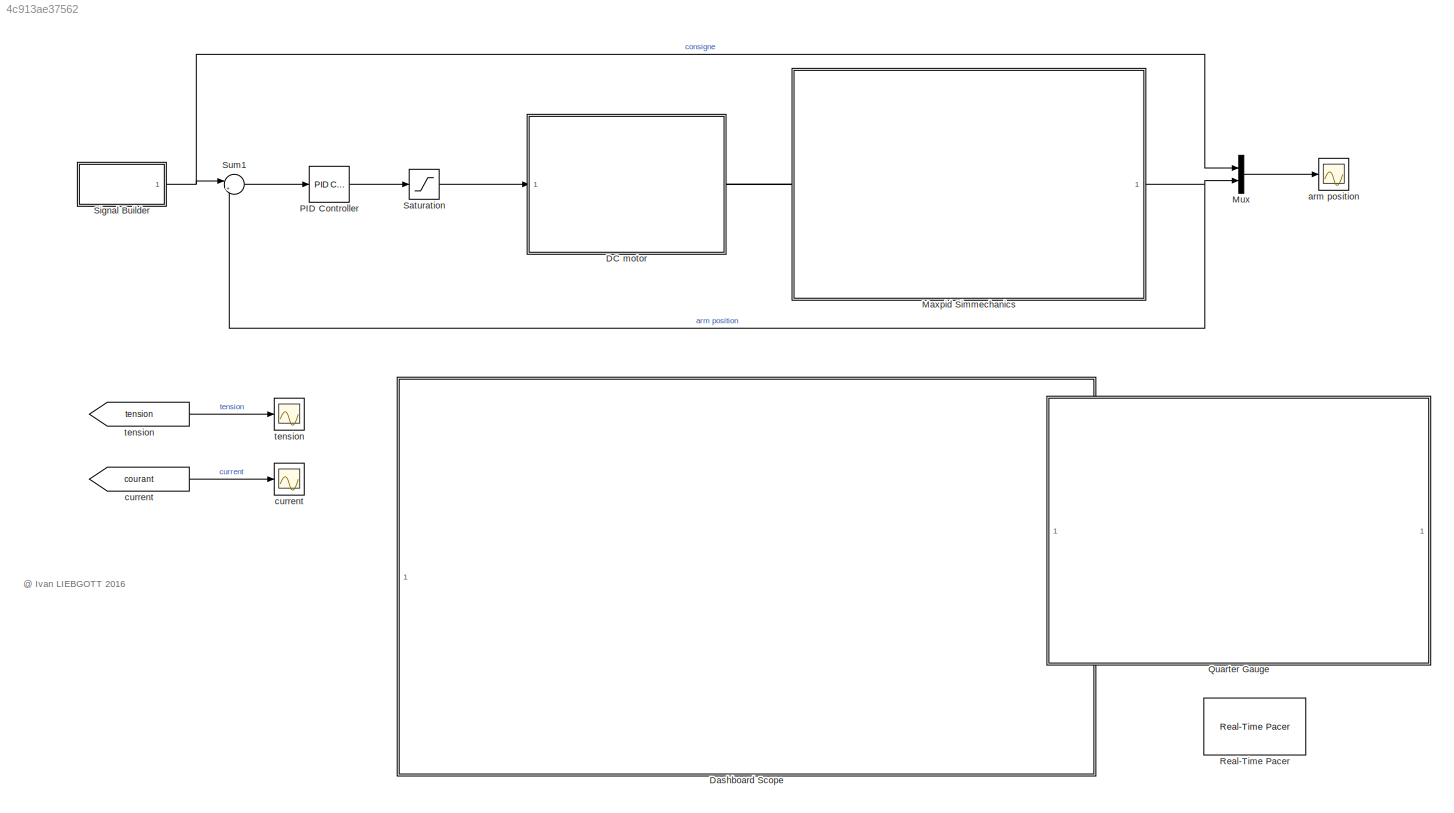
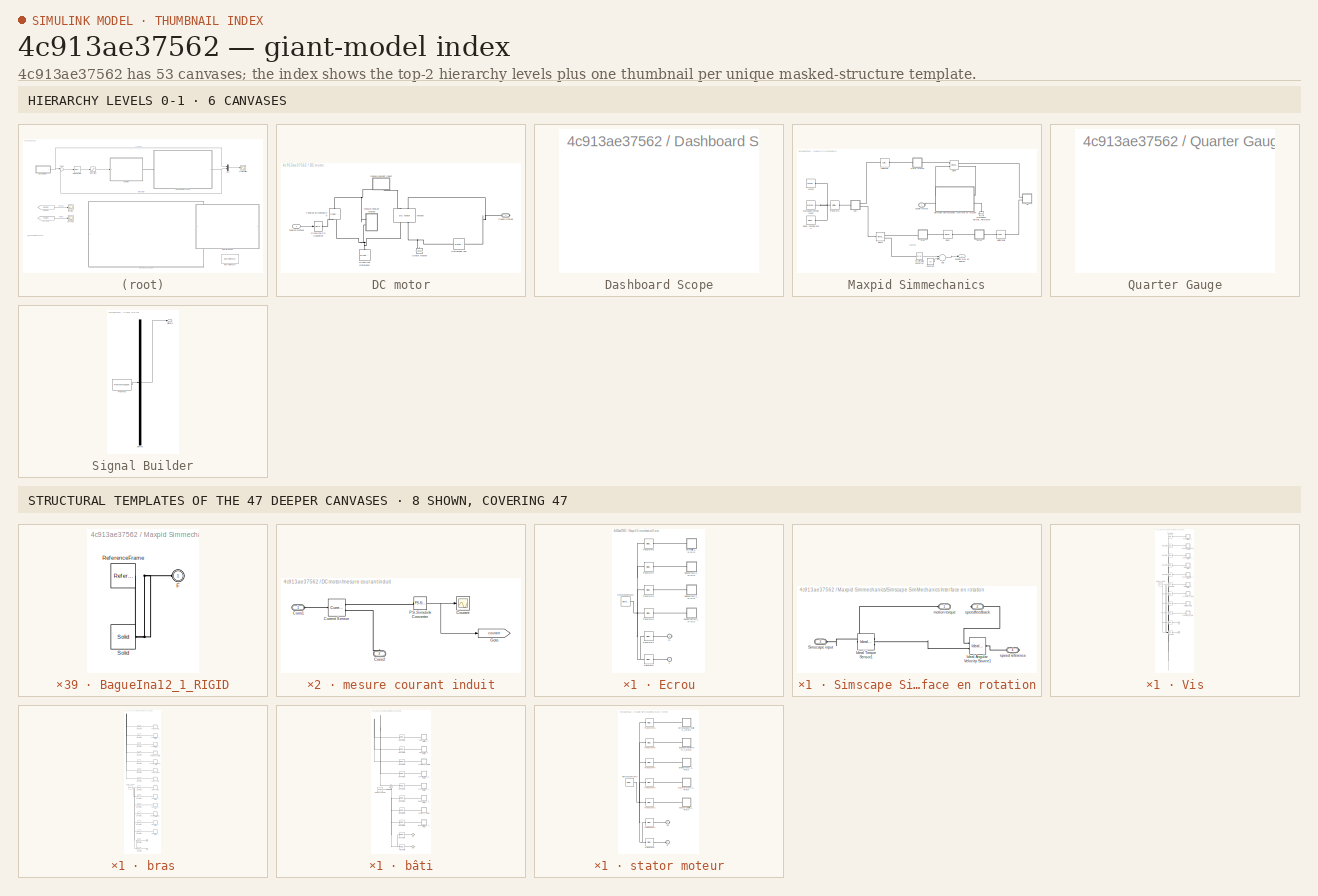
[diagram: thumbnail index - top-2 hierarchy levels (6 canvases) + 8 structural-template representatives of the remaining 47 canvases]
MODEL slx_4c913ae37562
KIND model
CONFIG AbsTol = auto
CONFIG FixedStep = auto
CONFIG MaxStep = auto
CONFIG MinStep = auto
CONFIG RelTol = 1e-3
CONFIG SampleTimeConstraint = Unconstrained
CONFIG Solver = ode15s
CONFIG SolverMode = Auto
CONFIG SolverName = ode15s
CONFIG StartTime = 0.0
CONFIG StopTime = 2.5
BLOCK [Scope]  current 
  Ports = [1]
  ScopeSpecificationString = Simulink.scopes.TimeScopeBlockCfg('CurrentConfiguration', extmgr.ConfigurationSet(extmgr.Configuration('Core','General UI',true,'FigureColor',[1 1 1]),extmgr.Configuration('Core','Source UI',true),extmgr.Configuration('Sources','WiredSimulink',true,'DataLoggingVariableName','ScopeData2','DataLoggingSaveFormat','Array','DataLoggingDecimation','1','DataLoggingDecimateData',true),extmgr.Configuration...<+2756ch>
BLOCK [SubSystem] DC motor
  Ports = [1, 0, 0, 0, 0, 0, 1]
  RequestExecContextInheritance = off
  Variant = off
BLOCK [PMIOPort] DC motor/Couple moteur 
  Port = 1
  Side = Right
BLOCK [Reference] DC motor/Electrical Reference  REF=fl_lib/Electrical/Electrical Elements/Electrical Reference
  Ports = [0, 0, 0, 0, 0, 1]
  SourceBlock = fl_lib/Electrical/Electrical Elements/Electrical Reference
  SourceType = Electrical Reference
BLOCK [Reference] DC motor/Simulink-PS Converter  REF=nesl_utility/Simulink-PS
Converter
  Ports = [1, 0, 0, 0, 0, 0, 1]
  SourceBlock = nesl_utility/Simulink-PS\nConverter
  SourceType = Simulink-PS\nConverter
BLOCK [Reference] DC motor/Stator moteur  REF=fl_lib/Mechanical/Rotational Elements/Mechanical
Rotational Reference
  Ports = [0, 0, 0, 0, 0, 1]
  SourceBlock = fl_lib/Mechanical/Rotational Elements/Mechanical\nRotational Reference
  SourceType = Mechanical\nRotational Reference
BLOCK [Reference] DC motor/Tension alimentation  REF=fl_lib/Electrical/Electrical Sources/Controlled Voltage
Source
  Ports = [0, 0, 0, 0, 0, 1, 2]
  SourceBlock = fl_lib/Electrical/Electrical Sources/Controlled Voltage\nSource
  SourceType = Controlled Voltage\nSource
BLOCK [Reference] DC motor/frottement sec   REF=fl_lib/Mechanical/Rotational Elements/Rotational Friction
  Ports = [0, 0, 0, 0, 0, 1, 1]
  SourceBlock = fl_lib/Mechanical/Rotational Elements/Rotational Friction
  SourceType = Rotational Friction
BLOCK [SubSystem] DC motor/mesure courant induit
  Ports = [0, 0, 0, 0, 0, 2]
  RequestExecContextInheritance = off
  Variant = off
BLOCK [PMIOPort] DC motor/mesure courant induit/Conn1
  Port = 1
  Side = Left
BLOCK [PMIOPort] DC motor/mesure courant induit/Conn2
  Port = 2
  Side = Left
BLOCK [Scope] DC motor/mesure courant induit/Courant
  Ports = [1]
  ScopeSpecificationString = C++SS(StrPVP('Location','[1, 48, 1367, 767]'),StrPVP('Open','off'),MxPVP('AxesTitles',24,'struct(''axes1'',''%<SignalLabel>'')'),MxPVP('ScopeGraphics',28,'struct(''FigureColor'',''[0.5 0.5 0.5]'',''AxesColor'',''[0 0 0]'',''AxesTickColor'',''[1 1 1]'',''LineColors'',''[1 1 0;1 0 1;0 1 1;1 0 0;0 1 0;0 0 1]'',''LineStyles'',''-|-|-|-|-|-'',''LineWidths'',''[0.5 0.5 0.5 0.5 0.5 0.5]'',''MarkerStyles'...<+242ch>
BLOCK [Reference] DC motor/mesure courant induit/Current Sensor  REF=fl_lib/Electrical/Electrical Sensors/Current Sensor
  Ports = [0, 0, 0, 0, 0, 1, 2]
  SourceBlock = fl_lib/Electrical/Electrical Sensors/Current Sensor
  SourceType = Current Sensor
BLOCK [Goto] DC motor/mesure courant induit/Goto
  GotoTag = courant
  TagVisibility = global
BLOCK [Reference] DC motor/mesure courant induit/PS-Simulink Converter  REF=nesl_utility/PS-Simulink
Converter
  Ports = [0, 1, 0, 0, 0, 1]
  SourceBlock = nesl_utility/PS-Simulink\nConverter
  SourceType = PS-Simulink\nConverter
BLOCK [SubSystem] DC motor/mesure tension moteur
  Ports = [0, 0, 0, 0, 0, 2]
  RequestExecContextInheritance = off
  Variant = off
BLOCK [PMIOPort] DC motor/mesure tension moteur/Conn1
  Port = 1
  Side = Left
BLOCK [PMIOPort] DC motor/mesure tension moteur/Conn2
  Port = 2
  Side = Left
BLOCK [Goto] DC motor/mesure tension moteur/Goto
  GotoTag = tension
  TagVisibility = global
BLOCK [Reference] DC motor/mesure tension moteur/PS-Simulink Converter1  REF=nesl_utility/PS-Simulink
Converter
  Ports = [0, 1, 0, 0, 0, 1]
  SourceBlock = nesl_utility/PS-Simulink\nConverter
  SourceType = PS-Simulink\nConverter
BLOCK [Scope] DC motor/mesure tension moteur/Tension
  Ports = [1]
  ScopeSpecificationString = C++SS(StrPVP('Location','[1644, 137, 1968, 376]'),StrPVP('Open','off'),MxPVP('AxesTitles',24,'struct(''axes1'',''%<SignalLabel>'')'),MxPVP('ScopeGraphics',28,'struct(''FigureColor'',''[0.5 0.5 0.5]'',''AxesColor'',''[0 0 0]'',''AxesTickColor'',''[1 1 1]'',''LineColors'',''[1 1 0;1 0 1;0 1 1;1 0 0;0 1 0;0 0 1]'',''LineStyles'',''-|-|-|-|-|-'',''LineWidths'',''[0.5 0.5 0.5 0.5 0.5 0.5]'',''MarkerSty...<+246ch>
BLOCK [Reference] DC motor/mesure tension moteur/Voltage Sensor  REF=fl_lib/Electrical/Electrical Sensors/Voltage Sensor
  Ports = [0, 0, 0, 0, 0, 1, 2]
  SourceBlock = fl_lib/Electrical/Electrical Sensors/Voltage Sensor
  SourceType = Voltage Sensor
BLOCK [Reference] DC motor/moteur  REF=elec_lib/Actuators & Drivers/Rotational Actuators/DC Motor
  Ports = [0, 0, 0, 0, 0, 2, 2]
  SourceBlock = elec_lib/Actuators & Drivers/Rotational Actuators/DC Motor
  SourceType = DC Motor
BLOCK [Inport] DC motor/tension moteur 
  IconDisplay = Port number
BLOCK [SubSystem] Dashboard Scope
  DialogController = hmiCreateDDGDialog
  IsWebBlock = on
  MaskHideContents = on
  Ports = []
  RequestExecContextInheritance = off
  Variant = off
BLOCK [SubSystem] Maxpid Simmechanics
  Ports = [0, 1, 0, 0, 0, 1]
  RequestExecContextInheritance = off
  Variant = off
BLOCK [Sum] Maxpid Simmechanics/Add
  InputSameDT = off
  OutDataTypeStr = Inherit: Inherit via internal rule
  Ports = [2, 1]
  SaturateOnIntegerOverflow = off
BLOCK [Constant] Maxpid Simmechanics/Constant
  Value = 90
BLOCK [PMIOPort] Maxpid Simmechanics/Couple moteur
  Port = 1
  Side = Left
BLOCK [Reference] Maxpid Simmechanics/Cylindrical  REF=sm_lib/Joints/Cylindrical
Joint
  Ports = [0, 0, 0, 0, 0, 1, 1]
  SourceBlock = sm_lib/Joints/Cylindrical\nJoint
  SourceType = Cylindrical\nJoint
BLOCK [SubSystem] Maxpid Simmechanics/Ecrou
  Ports = [0, 0, 0, 0, 0, 1, 1]
  RequestExecContextInheritance = off
  Variant = off
BLOCK [SubSystem] Maxpid Simmechanics/Ecrou/BagueIna12_1_RIGID
  Ports = [0, 0, 0, 0, 0, 1]
  RequestExecContextInheritance = off
  Variant = off
BLOCK [PMIOPort] Maxpid Simmechanics/Ecrou/BagueIna12_1_RIGID/F
  Port = 1
  Side = Left
BLOCK [Reference] Maxpid Simmechanics/Ecrou/BagueIna12_1_RIGID/ReferenceFrame  REF=sm_lib/Frames and
Transforms/Reference
Frame
  Ports = [0, 0, 0, 0, 0, 0, 1]
  SourceBlock = sm_lib/Frames and\nTransforms/Reference\nFrame
  SourceType = Reference\nFrame
BLOCK [Reference] Maxpid Simmechanics/Ecrou/BagueIna12_1_RIGID/Solid  REF=sm_lib/Body Elements/Solid
  Ports = [0, 0, 0, 0, 0, 0, 1]
  SourceBlock = sm_lib/Body Elements/Solid
  SourceType = Solid
BLOCK [SubSystem] Maxpid Simmechanics/Ecrou/BagueIna12_2_RIGID
  Ports = [0, 0, 0, 0, 0, 1]
  RequestExecContextInheritance = off
  Variant = off
BLOCK [PMIOPort] Maxpid Simmechanics/Ecrou/BagueIna12_2_RIGID/F
  Port = 1
  Side = Left
BLOCK [Reference] Maxpid Simmechanics/Ecrou/BagueIna12_2_RIGID/ReferenceFrame  REF=sm_lib/Frames and
Transforms/Reference
Frame
  Ports = [0, 0, 0, 0, 0, 0, 1]
  SourceBlock = sm_lib/Frames and\nTransforms/Reference\nFrame
  SourceType = Reference\nFrame
BLOCK [Reference] Maxpid Simmechanics/Ecrou/BagueIna12_2_RIGID/Solid  REF=sm_lib/Body Elements/Solid
  Ports = [0, 0, 0, 0, 0, 0, 1]
  SourceBlock = sm_lib/Body Elements/Solid
  SourceType = Solid
BLOCK [SubSystem] Maxpid Simmechanics/Ecrou/EcrouBille_1_RIGID
  Ports = [0, 0, 0, 0, 0, 1]
  RequestExecContextInheritance = off
  Variant = off
BLOCK [PMIOPort] Maxpid Simmechanics/Ecrou/EcrouBille_1_RIGID/F
  Port = 1
  Side = Left
BLOCK [Reference] Maxpid Simmechanics/Ecrou/EcrouBille_1_RIGID/ReferenceFrame  REF=sm_lib/Frames and
Transforms/Reference
Frame
  Ports = [0, 0, 0, 0, 0, 0, 1]
  SourceBlock = sm_lib/Frames and\nTransforms/Reference\nFrame
  SourceType = Reference\nFrame
BLOCK [Reference] Maxpid Simmechanics/Ecrou/EcrouBille_1_RIGID/Solid  REF=sm_lib/Body Elements/Solid
  Ports = [0, 0, 0, 0, 0, 0, 1]
  SourceBlock = sm_lib/Body Elements/Solid
  SourceType = Solid
BLOCK [PMIOPort] Maxpid Simmechanics/Ecrou/F
  Port = 1
  Side = Left
BLOCK [PMIOPort] Maxpid Simmechanics/Ecrou/F1
  Port = 2
  Side = Right
BLOCK [Reference] Maxpid Simmechanics/Ecrou/ReferenceFrame  REF=sm_lib/Frames and
Transforms/Reference
Frame
  Ports = [0, 0, 0, 0, 0, 0, 1]
  SourceBlock = sm_lib/Frames and\nTransforms/Reference\nFrame
  SourceType = Reference\nFrame
BLOCK [SubSystem] Maxpid Simmechanics/Ecrou/SupportEcrou_1_RIGID
  Ports = [0, 0, 0, 0, 0, 1]
  RequestExecContextInheritance = off
  Variant = off
BLOCK [PMIOPort] Maxpid Simmechanics/Ecrou/SupportEcrou_1_RIGID/F
  Port = 1
  Side = Left
BLOCK [Reference] Maxpid Simmechanics/Ecrou/SupportEcrou_1_RIGID/ReferenceFrame  REF=sm_lib/Frames and
Transforms/Reference
Frame
  Ports = [0, 0, 0, 0, 0, 0, 1]
  SourceBlock = sm_lib/Frames and\nTransforms/Reference\nFrame
  SourceType = Reference\nFrame
BLOCK [Reference] Maxpid Simmechanics/Ecrou/SupportEcrou_1_RIGID/Solid  REF=sm_lib/Body Elements/Solid
  Ports = [0, 0, 0, 0, 0, 0, 1]
  SourceBlock = sm_lib/Body Elements/Solid
  SourceType = Solid
BLOCK [Reference] Maxpid Simmechanics/Ecrou/Transform  REF=sm_lib/Frames and
Transforms/Rigid
Transform
  Ports = [0, 0, 0, 0, 0, 1, 1]
  SourceBlock = sm_lib/Frames and\nTransforms/Rigid\nTransform
  SourceType = Rigid\nTransform
BLOCK [Reference] Maxpid Simmechanics/Ecrou/Transform1  REF=sm_lib/Frames and
Transforms/Rigid
Transform
  Ports = [0, 0, 0, 0, 0, 1, 1]
  SourceBlock = sm_lib/Frames and\nTransforms/Rigid\nTransform
  SourceType = Rigid\nTransform
BLOCK [Reference] Maxpid Simmechanics/Ecrou/Transform2  REF=sm_lib/Frames and
Transforms/Rigid
Transform
  Ports = [0, 0, 0, 0, 0, 1, 1]
  SourceBlock = sm_lib/Frames and\nTransforms/Rigid\nTransform
  SourceType = Rigid\nTransform
BLOCK [Reference] Maxpid Simmechanics/Ecrou/Transform3  REF=sm_lib/Frames and
Transforms/Rigid
Transform
  Ports = [0, 0, 0, 0, 0, 1, 1]
  SourceBlock = sm_lib/Frames and\nTransforms/Rigid\nTransform
  SourceType = Rigid\nTransform
BLOCK [Reference] Maxpid Simmechanics/Ecrou/Transform4  REF=sm_lib/Frames and
Transforms/Rigid
Transform
  Ports = [0, 0, 0, 0, 0, 1, 1]
  SourceBlock = sm_lib/Frames and\nTransforms/Rigid\nTransform
  SourceType = Rigid\nTransform
BLOCK [Reference] Maxpid Simmechanics/Ecrou/Transform5  REF=sm_lib/Frames and
Transforms/Rigid
Transform
  Ports = [0, 0, 0, 0, 0, 1, 1]
  SourceBlock = sm_lib/Frames and\nTransforms/Rigid\nTransform
  SourceType = Rigid\nTransform
BLOCK [Reference] Maxpid Simmechanics/Hélicoïdale  REF=sm_lib/Joints/Lead Screw
Joint
  Ports = [0, 0, 0, 0, 0, 1, 1]
  SourceBlock = sm_lib/Joints/Lead Screw\nJoint
  SourceType = Lead Screw\nJoint
BLOCK [Reference] Maxpid Simmechanics/Mechanical Rotational Reference  REF=fl_lib/Mechanical/Rotational Elements/Mechanical
Rotational Reference
  Ports = [0, 0, 0, 0, 0, 1]
  SourceBlock = fl_lib/Mechanical/Rotational Elements/Mechanical\nRotational Reference
  SourceType = Mechanical\nRotational Reference
BLOCK [Reference] Maxpid Simmechanics/MechanismConfiguration  REF=sm_lib/Utilities/Mechanism
Configuration
  Ports = [0, 0, 0, 0, 0, 0, 1]
  SourceBlock = sm_lib/Utilities/Mechanism\nConfiguration
  SourceType = Mechanism\nConfiguration
BLOCK [Reference] Maxpid Simmechanics/PS-Simulink Converter  REF=nesl_utility/PS-Simulink
Converter
  Ports = [0, 1, 0, 0, 0, 1]
  SourceBlock = nesl_utility/PS-Simulink\nConverter
  SourceType = PS-Simulink\nConverter
BLOCK [SubSystem] Maxpid Simmechanics/Simscape SimMechanics Interface en rotation
  Ports = [0, 0, 0, 0, 0, 2, 2]
  RequestExecContextInheritance = off
  Variant = off
BLOCK [PMIOPort] Maxpid Simmechanics/Simscape SimMechanics Interface en rotation/ Simscape input
  Port = 3
  Side = Left
BLOCK [PMIOPort] Maxpid Simmechanics/Simscape SimMechanics Interface en rotation/ speedfeedback
  Port = 2
  Side = Right
BLOCK [Reference] Maxpid Simmechanics/Simscape SimMechanics Interface en rotation/Ideal Angular Velocity Source1  REF=fl_lib/Mechanical/Mechanical Sources/Ideal Angular
Velocity Source
  Ports = [0, 0, 0, 0, 0, 1, 2]
  SourceBlock = fl_lib/Mechanical/Mechanical Sources/Ideal Angular\nVelocity Source
  SourceType = Ideal Angular\nVelocity Source
BLOCK [Reference] Maxpid Simmechanics/Simscape SimMechanics Interface en rotation/Ideal Torque Sensor1  REF=fl_lib/Mechanical/Mechanical Sensors/Ideal Torque Sensor
  Ports = [0, 0, 0, 0, 0, 1, 2]
  SourceBlock = fl_lib/Mechanical/Mechanical Sensors/Ideal Torque Sensor
  SourceType = Ideal Torque Sensor
BLOCK [PMIOPort] Maxpid Simmechanics/Simscape SimMechanics Interface en rotation/motion torque 
  Port = 1
  Side = Left
BLOCK [PMIOPort] Maxpid Simmechanics/Simscape SimMechanics Interface en rotation/speed reference 
  Port = 4
  Side = Right
BLOCK [Reference] Maxpid Simmechanics/Solver Configuration  REF=nesl_utility/Solver
Configuration
  Ports = [0, 0, 0, 0, 0, 0, 1]
  SourceBlock = nesl_utility/Solver\nConfiguration
  SourceType = Solver\nConfiguration
BLOCK [Reference] Maxpid Simmechanics/Transform  REF=sm_lib/Frames and
Transforms/Rigid
Transform
  Ports = [0, 0, 0, 0, 0, 1, 1]
  SourceBlock = sm_lib/Frames and\nTransforms/Rigid\nTransform
  SourceType = Rigid\nTransform
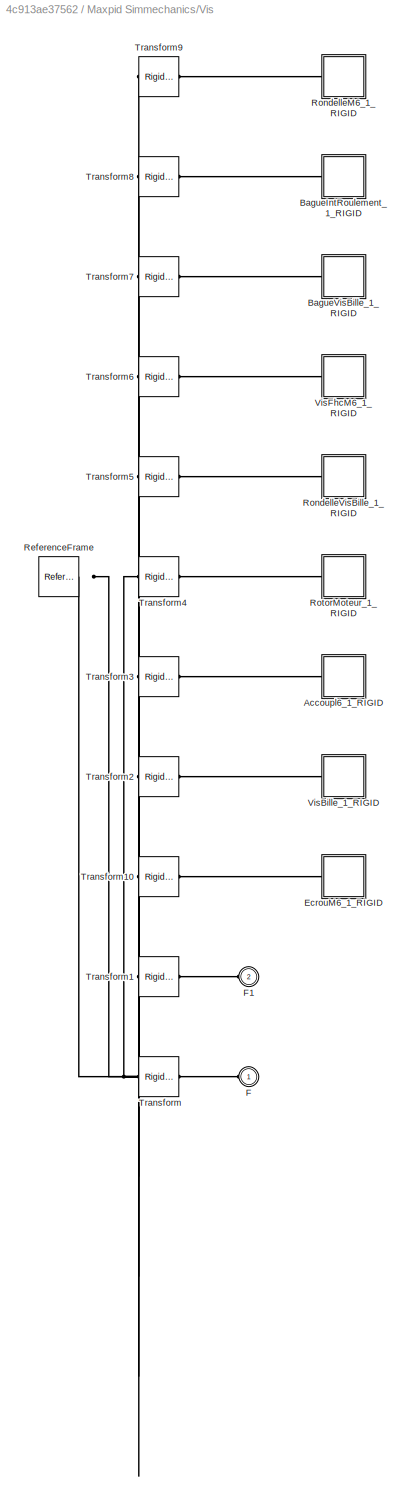
BLOCK [SubSystem] Maxpid Simmechanics/Vis
  Ports = [0, 0, 0, 0, 0, 2]
  RequestExecContextInheritance = off
  Variant = off
BLOCK [SubSystem] Maxpid Simmechanics/Vis/Accoupl6_1_RIGID
  Ports = [0, 0, 0, 0, 0, 1]
  RequestExecContextInheritance = off
  Variant = off
BLOCK [PMIOPort] Maxpid Simmechanics/Vis/Accoupl6_1_RIGID/F
  Port = 1
  Side = Left
BLOCK [Reference] Maxpid Simmechanics/Vis/Accoupl6_1_RIGID/ReferenceFrame  REF=sm_lib/Frames and
Transforms/Reference
Frame
  Ports = [0, 0, 0, 0, 0, 0, 1]
  SourceBlock = sm_lib/Frames and\nTransforms/Reference\nFrame
  SourceType = Reference\nFrame
BLOCK [Reference] Maxpid Simmechanics/Vis/Accoupl6_1_RIGID/Solid  REF=sm_lib/Body Elements/Solid
  Ports = [0, 0, 0, 0, 0, 0, 1]
  SourceBlock = sm_lib/Body Elements/Solid
  SourceType = Solid
BLOCK [SubSystem] Maxpid Simmechanics/Vis/BagueIntRoulement_1_RIGID
  Ports = [0, 0, 0, 0, 0, 1]
  RequestExecContextInheritance = off
  Variant = off
BLOCK [PMIOPort] Maxpid Simmechanics/Vis/BagueIntRoulement_1_RIGID/F
  Port = 1
  Side = Left
BLOCK [Reference] Maxpid Simmechanics/Vis/BagueIntRoulement_1_RIGID/ReferenceFrame  REF=sm_lib/Frames and
Transforms/Reference
Frame
  Ports = [0, 0, 0, 0, 0, 0, 1]
  SourceBlock = sm_lib/Frames and\nTransforms/Reference\nFrame
  SourceType = Reference\nFrame
BLOCK [Reference] Maxpid Simmechanics/Vis/BagueIntRoulement_1_RIGID/Solid  REF=sm_lib/Body Elements/Solid
  Ports = [0, 0, 0, 0, 0, 0, 1]
  SourceBlock = sm_lib/Body Elements/Solid
  SourceType = Solid
BLOCK [SubSystem] Maxpid Simmechanics/Vis/BagueVisBille_1_RIGID
  Ports = [0, 0, 0, 0, 0, 1]
  RequestExecContextInheritance = off
  Variant = off
BLOCK [PMIOPort] Maxpid Simmechanics/Vis/BagueVisBille_1_RIGID/F
  Port = 1
  Side = Left
BLOCK [Reference] Maxpid Simmechanics/Vis/BagueVisBille_1_RIGID/ReferenceFrame  REF=sm_lib/Frames and
Transforms/Reference
Frame
  Ports = [0, 0, 0, 0, 0, 0, 1]
  SourceBlock = sm_lib/Frames and\nTransforms/Reference\nFrame
  SourceType = Reference\nFrame
BLOCK [Reference] Maxpid Simmechanics/Vis/BagueVisBille_1_RIGID/Solid  REF=sm_lib/Body Elements/Solid
  Ports = [0, 0, 0, 0, 0, 0, 1]
  SourceBlock = sm_lib/Body Elements/Solid
  SourceType = Solid
BLOCK [SubSystem] Maxpid Simmechanics/Vis/EcrouM6_1_RIGID
  Ports = [0, 0, 0, 0, 0, 1]
  RequestExecContextInheritance = off
  Variant = off
BLOCK [PMIOPort] Maxpid Simmechanics/Vis/EcrouM6_1_RIGID/F
  Port = 1
  Side = Left
BLOCK [Reference] Maxpid Simmechanics/Vis/EcrouM6_1_RIGID/ReferenceFrame  REF=sm_lib/Frames and
Transforms/Reference
Frame
  Ports = [0, 0, 0, 0, 0, 0, 1]
  SourceBlock = sm_lib/Frames and\nTransforms/Reference\nFrame
  SourceType = Reference\nFrame
BLOCK [Reference] Maxpid Simmechanics/Vis/EcrouM6_1_RIGID/Solid  REF=sm_lib/Body Elements/Solid
  Ports = [0, 0, 0, 0, 0, 0, 1]
  SourceBlock = sm_lib/Body Elements/Solid
  SourceType = Solid
BLOCK [PMIOPort] Maxpid Simmechanics/Vis/F
  Port = 1
  Side = Left
BLOCK [PMIOPort] Maxpid Simmechanics/Vis/F1
  Port = 2
  Side = Left
BLOCK [Reference] Maxpid Simmechanics/Vis/ReferenceFrame  REF=sm_lib/Frames and
Transforms/Reference
Frame
  Ports = [0, 0, 0, 0, 0, 0, 1]
  SourceBlock = sm_lib/Frames and\nTransforms/Reference\nFrame
  SourceType = Reference\nFrame
BLOCK [SubSystem] Maxpid Simmechanics/Vis/RondelleM6_1_RIGID
  Ports = [0, 0, 0, 0, 0, 1]
  RequestExecContextInheritance = off
  Variant = off
BLOCK [PMIOPort] Maxpid Simmechanics/Vis/RondelleM6_1_RIGID/F
  Port = 1
  Side = Left
BLOCK [Reference] Maxpid Simmechanics/Vis/RondelleM6_1_RIGID/ReferenceFrame  REF=sm_lib/Frames and
Transforms/Reference
Frame
  Ports = [0, 0, 0, 0, 0, 0, 1]
  SourceBlock = sm_lib/Frames and\nTransforms/Reference\nFrame
  SourceType = Reference\nFrame
BLOCK [Reference] Maxpid Simmechanics/Vis/RondelleM6_1_RIGID/Solid  REF=sm_lib/Body Elements/Solid
  Ports = [0, 0, 0, 0, 0, 0, 1]
  SourceBlock = sm_lib/Body Elements/Solid
  SourceType = Solid
BLOCK [SubSystem] Maxpid Simmechanics/Vis/RondelleVisBille_1_RIGID
  Ports = [0, 0, 0, 0, 0, 1]
  RequestExecContextInheritance = off
  Variant = off
BLOCK [PMIOPort] Maxpid Simmechanics/Vis/RondelleVisBille_1_RIGID/F
  Port = 1
  Side = Left
BLOCK [Reference] Maxpid Simmechanics/Vis/RondelleVisBille_1_RIGID/ReferenceFrame  REF=sm_lib/Frames and
Transforms/Reference
Frame
  Ports = [0, 0, 0, 0, 0, 0, 1]
  SourceBlock = sm_lib/Frames and\nTransforms/Reference\nFrame
  SourceType = Reference\nFrame
BLOCK [Reference] Maxpid Simmechanics/Vis/RondelleVisBille_1_RIGID/Solid  REF=sm_lib/Body Elements/Solid
  Ports = [0, 0, 0, 0, 0, 0, 1]
  SourceBlock = sm_lib/Body Elements/Solid
  SourceType = Solid
BLOCK [SubSystem] Maxpid Simmechanics/Vis/RotorMoteur_1_RIGID
  Ports = [0, 0, 0, 0, 0, 1]
  RequestExecContextInheritance = off
  Variant = off
BLOCK [PMIOPort] Maxpid Simmechanics/Vis/RotorMoteur_1_RIGID/F
  Port = 1
  Side = Left
BLOCK [Reference] Maxpid Simmechanics/Vis/RotorMoteur_1_RIGID/ReferenceFrame  REF=sm_lib/Frames and
Transforms/Reference
Frame
  Ports = [0, 0, 0, 0, 0, 0, 1]
  SourceBlock = sm_lib/Frames and\nTransforms/Reference\nFrame
  SourceType = Reference\nFrame
BLOCK [Reference] Maxpid Simmechanics/Vis/RotorMoteur_1_RIGID/Solid  REF=sm_lib/Body Elements/Solid
  Ports = [0, 0, 0, 0, 0, 0, 1]
  SourceBlock = sm_lib/Body Elements/Solid
  SourceType = Solid
BLOCK [Reference] Maxpid Simmechanics/Vis/Transform  REF=sm_lib/Frames and
Transforms/Rigid
Transform
  Ports = [0, 0, 0, 0, 0, 1, 1]
  SourceBlock = sm_lib/Frames and\nTransforms/Rigid\nTransform
  SourceType = Rigid\nTransform
BLOCK [Reference] Maxpid Simmechanics/Vis/Transform1  REF=sm_lib/Frames and
Transforms/Rigid
Transform
  Ports = [0, 0, 0, 0, 0, 1, 1]
  SourceBlock = sm_lib/Frames and\nTransforms/Rigid\nTransform
  SourceType = Rigid\nTransform
BLOCK [Reference] Maxpid Simmechanics/Vis/Transform10  REF=sm_lib/Frames and
Transforms/Rigid
Transform
  Ports = [0, 0, 0, 0, 0, 1, 1]
  SourceBlock = sm_lib/Frames and\nTransforms/Rigid\nTransform
  SourceType = Rigid\nTransform
BLOCK [Reference] Maxpid Simmechanics/Vis/Transform2  REF=sm_lib/Frames and
Transforms/Rigid
Transform
  Ports = [0, 0, 0, 0, 0, 1, 1]
  SourceBlock = sm_lib/Frames and\nTransforms/Rigid\nTransform
  SourceType = Rigid\nTransform
BLOCK [Reference] Maxpid Simmechanics/Vis/Transform3  REF=sm_lib/Frames and
Transforms/Rigid
Transform
  Ports = [0, 0, 0, 0, 0, 1, 1]
  SourceBlock = sm_lib/Frames and\nTransforms/Rigid\nTransform
  SourceType = Rigid\nTransform
BLOCK [Reference] Maxpid Simmechanics/Vis/Transform4  REF=sm_lib/Frames and
Transforms/Rigid
Transform
  Ports = [0, 0, 0, 0, 0, 1, 1]
  SourceBlock = sm_lib/Frames and\nTransforms/Rigid\nTransform
  SourceType = Rigid\nTransform
BLOCK [Reference] Maxpid Simmechanics/Vis/Transform5  REF=sm_lib/Frames and
Transforms/Rigid
Transform
  Ports = [0, 0, 0, 0, 0, 1, 1]
  SourceBlock = sm_lib/Frames and\nTransforms/Rigid\nTransform
  SourceType = Rigid\nTransform
BLOCK [Reference] Maxpid Simmechanics/Vis/Transform6  REF=sm_lib/Frames and
Transforms/Rigid
Transform
  Ports = [0, 0, 0, 0, 0, 1, 1]
  SourceBlock = sm_lib/Frames and\nTransforms/Rigid\nTransform
  SourceType = Rigid\nTransform
BLOCK [Reference] Maxpid Simmechanics/Vis/Transform7  REF=sm_lib/Frames and
Transforms/Rigid
Transform
  Ports = [0, 0, 0, 0, 0, 1, 1]
  SourceBlock = sm_lib/Frames and\nTransforms/Rigid\nTransform
  SourceType = Rigid\nTransform
BLOCK [Reference] Maxpid Simmechanics/Vis/Transform8  REF=sm_lib/Frames and
Transforms/Rigid
Transform
  Ports = [0, 0, 0, 0, 0, 1, 1]
  SourceBlock = sm_lib/Frames and\nTransforms/Rigid\nTransform
  SourceType = Rigid\nTransform
BLOCK [Reference] Maxpid Simmechanics/Vis/Transform9  REF=sm_lib/Frames and
Transforms/Rigid
Transform
  Ports = [0, 0, 0, 0, 0, 1, 1]
  SourceBlock = sm_lib/Frames and\nTransforms/Rigid\nTransform
  SourceType = Rigid\nTransform
BLOCK [SubSystem] Maxpid Simmechanics/Vis/VisBille_1_RIGID
  Ports = [0, 0, 0, 0, 0, 1]
  RequestExecContextInheritance = off
  Variant = off
BLOCK [PMIOPort] Maxpid Simmechanics/Vis/VisBille_1_RIGID/F
  Port = 1
  Side = Left
BLOCK [Reference] Maxpid Simmechanics/Vis/VisBille_1_RIGID/ReferenceFrame  REF=sm_lib/Frames and
Transforms/Reference
Frame
  Ports = [0, 0, 0, 0, 0, 0, 1]
  SourceBlock = sm_lib/Frames and\nTransforms/Reference\nFrame
  SourceType = Reference\nFrame
BLOCK [Reference] Maxpid Simmechanics/Vis/VisBille_1_RIGID/Solid  REF=sm_lib/Body Elements/Solid
  Ports = [0, 0, 0, 0, 0, 0, 1]
  SourceBlock = sm_lib/Body Elements/Solid
  SourceType = Solid
BLOCK [SubSystem] Maxpid Simmechanics/Vis/VisFhcM6_1_RIGID
  Ports = [0, 0, 0, 0, 0, 1]
  RequestExecContextInheritance = off
  Variant = off
BLOCK [PMIOPort] Maxpid Simmechanics/Vis/VisFhcM6_1_RIGID/F
  Port = 1
  Side = Left
BLOCK [Reference] Maxpid Simmechanics/Vis/VisFhcM6_1_RIGID/ReferenceFrame  REF=sm_lib/Frames and
Transforms/Reference
Frame
  Ports = [0, 0, 0, 0, 0, 0, 1]
  SourceBlock = sm_lib/Frames and\nTransforms/Reference\nFrame
  SourceType = Reference\nFrame
BLOCK [Reference] Maxpid Simmechanics/Vis/VisFhcM6_1_RIGID/Solid  REF=sm_lib/Body Elements/Solid
  Ports = [0, 0, 0, 0, 0, 0, 1]
  SourceBlock = sm_lib/Body Elements/Solid
  SourceType = Solid
BLOCK [Reference] Maxpid Simmechanics/World  REF=sm_lib/Frames and
Transforms/World Frame
  Ports = [0, 0, 0, 0, 0, 0, 1]
  SourceBlock = sm_lib/Frames and\nTransforms/World Frame
  SourceType = World Frame
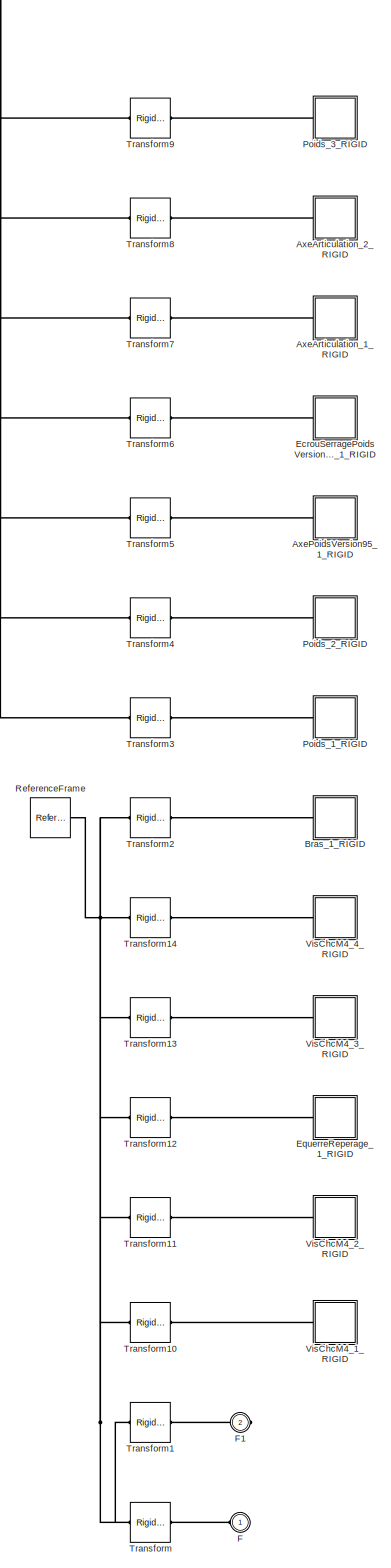
[diagram: Maxpid Simmechanics/bras - part 1/1, most of the canvas]
BLOCK [SubSystem] Maxpid Simmechanics/bras
  Ports = [0, 0, 0, 0, 0, 1, 1]
  RequestExecContextInheritance = off
  Variant = off
BLOCK [SubSystem] Maxpid Simmechanics/bras/AxeArticulation_1_RIGID
  Ports = [0, 0, 0, 0, 0, 1]
  RequestExecContextInheritance = off
  Variant = off
BLOCK [PMIOPort] Maxpid Simmechanics/bras/AxeArticulation_1_RIGID/F
  Port = 1
  Side = Left
BLOCK [Reference] Maxpid Simmechanics/bras/AxeArticulation_1_RIGID/ReferenceFrame  REF=sm_lib/Frames and
Transforms/Reference
Frame
  Ports = [0, 0, 0, 0, 0, 0, 1]
  SourceBlock = sm_lib/Frames and\nTransforms/Reference\nFrame
  SourceType = Reference\nFrame
BLOCK [Reference] Maxpid Simmechanics/bras/AxeArticulation_1_RIGID/Solid  REF=sm_lib/Body Elements/Solid
  Ports = [0, 0, 0, 0, 0, 0, 1]
  SourceBlock = sm_lib/Body Elements/Solid
  SourceType = Solid
BLOCK [SubSystem] Maxpid Simmechanics/bras/AxeArticulation_2_RIGID
  Ports = [0, 0, 0, 0, 0, 1]
  RequestExecContextInheritance = off
  Variant = off
BLOCK [PMIOPort] Maxpid Simmechanics/bras/AxeArticulation_2_RIGID/F
  Port = 1
  Side = Left
BLOCK [Reference] Maxpid Simmechanics/bras/AxeArticulation_2_RIGID/ReferenceFrame  REF=sm_lib/Frames and
Transforms/Reference
Frame
  Ports = [0, 0, 0, 0, 0, 0, 1]
  SourceBlock = sm_lib/Frames and\nTransforms/Reference\nFrame
  SourceType = Reference\nFrame
BLOCK [Reference] Maxpid Simmechanics/bras/AxeArticulation_2_RIGID/Solid  REF=sm_lib/Body Elements/Solid
  Ports = [0, 0, 0, 0, 0, 0, 1]
  SourceBlock = sm_lib/Body Elements/Solid
  SourceType = Solid
BLOCK [SubSystem] Maxpid Simmechanics/bras/AxePoidsVersion95_1_RIGID
  Ports = [0, 0, 0, 0, 0, 1]
  RequestExecContextInheritance = off
  Variant = off
BLOCK [PMIOPort] Maxpid Simmechanics/bras/AxePoidsVersion95_1_RIGID/F
  Port = 1
  Side = Left
BLOCK [Reference] Maxpid Simmechanics/bras/AxePoidsVersion95_1_RIGID/ReferenceFrame  REF=sm_lib/Frames and
Transforms/Reference
Frame
  Ports = [0, 0, 0, 0, 0, 0, 1]
  SourceBlock = sm_lib/Frames and\nTransforms/Reference\nFrame
  SourceType = Reference\nFrame
BLOCK [Reference] Maxpid Simmechanics/bras/AxePoidsVersion95_1_RIGID/Solid  REF=sm_lib/Body Elements/Solid
  Ports = [0, 0, 0, 0, 0, 0, 1]
  SourceBlock = sm_lib/Body Elements/Solid
  SourceType = Solid
BLOCK [SubSystem] Maxpid Simmechanics/bras/Bras_1_RIGID
  Ports = [0, 0, 0, 0, 0, 1]
  RequestExecContextInheritance = off
  Variant = off
BLOCK [PMIOPort] Maxpid Simmechanics/bras/Bras_1_RIGID/F
  Port = 1
  Side = Left
BLOCK [Reference] Maxpid Simmechanics/bras/Bras_1_RIGID/ReferenceFrame  REF=sm_lib/Frames and
Transforms/Reference
Frame
  Ports = [0, 0, 0, 0, 0, 0, 1]
  SourceBlock = sm_lib/Frames and\nTransforms/Reference\nFrame
  SourceType = Reference\nFrame
BLOCK [Reference] Maxpid Simmechanics/bras/Bras_1_RIGID/Solid  REF=sm_lib/Body Elements/Solid
  Ports = [0, 0, 0, 0, 0, 0, 1]
  SourceBlock = sm_lib/Body Elements/Solid
  SourceType = Solid
BLOCK [SubSystem] Maxpid Simmechanics/bras/EcrouSerragePoidsVersion95_1_RIGID
  Ports = [0, 0, 0, 0, 0, 1]
  RequestExecContextInheritance = off
  Variant = off
BLOCK [PMIOPort] Maxpid Simmechanics/bras/EcrouSerragePoidsVersion95_1_RIGID/F
  Port = 1
  Side = Left
BLOCK [Reference] Maxpid Simmechanics/bras/EcrouSerragePoidsVersion95_1_RIGID/ReferenceFrame  REF=sm_lib/Frames and
Transforms/Reference
Frame
  Ports = [0, 0, 0, 0, 0, 0, 1]
  SourceBlock = sm_lib/Frames and\nTransforms/Reference\nFrame
  SourceType = Reference\nFrame
BLOCK [Reference] Maxpid Simmechanics/bras/EcrouSerragePoidsVersion95_1_RIGID/Solid  REF=sm_lib/Body Elements/Solid
  Ports = [0, 0, 0, 0, 0, 0, 1]
  SourceBlock = sm_lib/Body Elements/Solid
  SourceType = Solid
BLOCK [SubSystem] Maxpid Simmechanics/bras/EquerreReperage_1_RIGID
  Ports = [0, 0, 0, 0, 0, 1]
  RequestExecContextInheritance = off
  Variant = off
BLOCK [PMIOPort] Maxpid Simmechanics/bras/EquerreReperage_1_RIGID/F
  Port = 1
  Side = Left
BLOCK [Reference] Maxpid Simmechanics/bras/EquerreReperage_1_RIGID/ReferenceFrame  REF=sm_lib/Frames and
Transforms/Reference
Frame
  Ports = [0, 0, 0, 0, 0, 0, 1]
  SourceBlock = sm_lib/Frames and\nTransforms/Reference\nFrame
  SourceType = Reference\nFrame
BLOCK [Reference] Maxpid Simmechanics/bras/EquerreReperage_1_RIGID/Solid  REF=sm_lib/Body Elements/Solid
  Ports = [0, 0, 0, 0, 0, 0, 1]
  SourceBlock = sm_lib/Body Elements/Solid
  SourceType = Solid
BLOCK [PMIOPort] Maxpid Simmechanics/bras/F
  Port = 1
  Side = Left
BLOCK [PMIOPort] Maxpid Simmechanics/bras/F1
  Port = 2
  Side = Right
BLOCK [SubSystem] Maxpid Simmechanics/bras/Poids_1_RIGID
  Ports = [0, 0, 0, 0, 0, 1]
  RequestExecContextInheritance = off
  Variant = off
BLOCK [PMIOPort] Maxpid Simmechanics/bras/Poids_1_RIGID/F
  Port = 1
  Side = Left
BLOCK [Reference] Maxpid Simmechanics/bras/Poids_1_RIGID/ReferenceFrame  REF=sm_lib/Frames and
Transforms/Reference
Frame
  Ports = [0, 0, 0, 0, 0, 0, 1]
  SourceBlock = sm_lib/Frames and\nTransforms/Reference\nFrame
  SourceType = Reference\nFrame
BLOCK [Reference] Maxpid Simmechanics/bras/Poids_1_RIGID/Solid  REF=sm_lib/Body Elements/Solid
  Ports = [0, 0, 0, 0, 0, 0, 1]
  SourceBlock = sm_lib/Body Elements/Solid
  SourceType = Solid
BLOCK [SubSystem] Maxpid Simmechanics/bras/Poids_2_RIGID
  Ports = [0, 0, 0, 0, 0, 1]
  RequestExecContextInheritance = off
  Variant = off
BLOCK [PMIOPort] Maxpid Simmechanics/bras/Poids_2_RIGID/F
  Port = 1
  Side = Left
BLOCK [Reference] Maxpid Simmechanics/bras/Poids_2_RIGID/ReferenceFrame  REF=sm_lib/Frames and
Transforms/Reference
Frame
  Ports = [0, 0, 0, 0, 0, 0, 1]
  SourceBlock = sm_lib/Frames and\nTransforms/Reference\nFrame
  SourceType = Reference\nFrame
BLOCK [Reference] Maxpid Simmechanics/bras/Poids_2_RIGID/Solid  REF=sm_lib/Body Elements/Solid
  Ports = [0, 0, 0, 0, 0, 0, 1]
  SourceBlock = sm_lib/Body Elements/Solid
  SourceType = Solid
BLOCK [SubSystem] Maxpid Simmechanics/bras/Poids_3_RIGID
  Ports = [0, 0, 0, 0, 0, 1]
  RequestExecContextInheritance = off
  Variant = off
BLOCK [PMIOPort] Maxpid Simmechanics/bras/Poids_3_RIGID/F
  Port = 1
  Side = Left
BLOCK [Reference] Maxpid Simmechanics/bras/Poids_3_RIGID/ReferenceFrame  REF=sm_lib/Frames and
Transforms/Reference
Frame
  Ports = [0, 0, 0, 0, 0, 0, 1]
  SourceBlock = sm_lib/Frames and\nTransforms/Reference\nFrame
  SourceType = Reference\nFrame
BLOCK [Reference] Maxpid Simmechanics/bras/Poids_3_RIGID/Solid  REF=sm_lib/Body Elements/Solid
  Ports = [0, 0, 0, 0, 0, 0, 1]
  SourceBlock = sm_lib/Body Elements/Solid
  SourceType = Solid
BLOCK [Reference] Maxpid Simmechanics/bras/ReferenceFrame  REF=sm_lib/Frames and
Transforms/Reference
Frame
  Ports = [0, 0, 0, 0, 0, 0, 1]
  SourceBlock = sm_lib/Frames and\nTransforms/Reference\nFrame
  SourceType = Reference\nFrame
BLOCK [Reference] Maxpid Simmechanics/bras/Transform  REF=sm_lib/Frames and
Transforms/Rigid
Transform
  Ports = [0, 0, 0, 0, 0, 1, 1]
  SourceBlock = sm_lib/Frames and\nTransforms/Rigid\nTransform
  SourceType = Rigid\nTransform
BLOCK [Reference] Maxpid Simmechanics/bras/Transform1  REF=sm_lib/Frames and
Transforms/Rigid
Transform
  Ports = [0, 0, 0, 0, 0, 1, 1]
  SourceBlock = sm_lib/Frames and\nTransforms/Rigid\nTransform
  SourceType = Rigid\nTransform
BLOCK [Reference] Maxpid Simmechanics/bras/Transform10  REF=sm_lib/Frames and
Transforms/Rigid
Transform
  Ports = [0, 0, 0, 0, 0, 1, 1]
  SourceBlock = sm_lib/Frames and\nTransforms/Rigid\nTransform
  SourceType = Rigid\nTransform
BLOCK [Reference] Maxpid Simmechanics/bras/Transform11  REF=sm_lib/Frames and
Transforms/Rigid
Transform
  Ports = [0, 0, 0, 0, 0, 1, 1]
  SourceBlock = sm_lib/Frames and\nTransforms/Rigid\nTransform
  SourceType = Rigid\nTransform
BLOCK [Reference] Maxpid Simmechanics/bras/Transform12  REF=sm_lib/Frames and
Transforms/Rigid
Transform
  Ports = [0, 0, 0, 0, 0, 1, 1]
  SourceBlock = sm_lib/Frames and\nTransforms/Rigid\nTransform
  SourceType = Rigid\nTransform
BLOCK [Reference] Maxpid Simmechanics/bras/Transform13  REF=sm_lib/Frames and
Transforms/Rigid
Transform
  Ports = [0, 0, 0, 0, 0, 1, 1]
  SourceBlock = sm_lib/Frames and\nTransforms/Rigid\nTransform
  SourceType = Rigid\nTransform
BLOCK [Reference] Maxpid Simmechanics/bras/Transform14  REF=sm_lib/Frames and
Transforms/Rigid
Transform
  Ports = [0, 0, 0, 0, 0, 1, 1]
  SourceBlock = sm_lib/Frames and\nTransforms/Rigid\nTransform
  SourceType = Rigid\nTransform
BLOCK [Reference] Maxpid Simmechanics/bras/Transform2  REF=sm_lib/Frames and
Transforms/Rigid
Transform
  Ports = [0, 0, 0, 0, 0, 1, 1]
  SourceBlock = sm_lib/Frames and\nTransforms/Rigid\nTransform
  SourceType = Rigid\nTransform
BLOCK [Reference] Maxpid Simmechanics/bras/Transform3  REF=sm_lib/Frames and
Transforms/Rigid
Transform
  Ports = [0, 0, 0, 0, 0, 1, 1]
  SourceBlock = sm_lib/Frames and\nTransforms/Rigid\nTransform
  SourceType = Rigid\nTransform
BLOCK [Reference] Maxpid Simmechanics/bras/Transform4  REF=sm_lib/Frames and
Transforms/Rigid
Transform
  Ports = [0, 0, 0, 0, 0, 1, 1]
  SourceBlock = sm_lib/Frames and\nTransforms/Rigid\nTransform
  SourceType = Rigid\nTransform
BLOCK [Reference] Maxpid Simmechanics/bras/Transform5  REF=sm_lib/Frames and
Transforms/Rigid
Transform
  Ports = [0, 0, 0, 0, 0, 1, 1]
  SourceBlock = sm_lib/Frames and\nTransforms/Rigid\nTransform
  SourceType = Rigid\nTransform
BLOCK [Reference] Maxpid Simmechanics/bras/Transform6  REF=sm_lib/Frames and
Transforms/Rigid
Transform
  Ports = [0, 0, 0, 0, 0, 1, 1]
  SourceBlock = sm_lib/Frames and\nTransforms/Rigid\nTransform
  SourceType = Rigid\nTransform
BLOCK [Reference] Maxpid Simmechanics/bras/Transform7  REF=sm_lib/Frames and
Transforms/Rigid
Transform
  Ports = [0, 0, 0, 0, 0, 1, 1]
  SourceBlock = sm_lib/Frames and\nTransforms/Rigid\nTransform
  SourceType = Rigid\nTransform
BLOCK [Reference] Maxpid Simmechanics/bras/Transform8  REF=sm_lib/Frames and
Transforms/Rigid
Transform
  Ports = [0, 0, 0, 0, 0, 1, 1]
  SourceBlock = sm_lib/Frames and\nTransforms/Rigid\nTransform
  SourceType = Rigid\nTransform
BLOCK [Reference] Maxpid Simmechanics/bras/Transform9  REF=sm_lib/Frames and
Transforms/Rigid
Transform
  Ports = [0, 0, 0, 0, 0, 1, 1]
  SourceBlock = sm_lib/Frames and\nTransforms/Rigid\nTransform
  SourceType = Rigid\nTransform
BLOCK [SubSystem] Maxpid Simmechanics/bras/VisChcM4_1_RIGID
  Ports = [0, 0, 0, 0, 0, 1]
  RequestExecContextInheritance = off
  Variant = off
BLOCK [PMIOPort] Maxpid Simmechanics/bras/VisChcM4_1_RIGID/F
  Port = 1
  Side = Left
BLOCK [Reference] Maxpid Simmechanics/bras/VisChcM4_1_RIGID/ReferenceFrame  REF=sm_lib/Frames and
Transforms/Reference
Frame
  Ports = [0, 0, 0, 0, 0, 0, 1]
  SourceBlock = sm_lib/Frames and\nTransforms/Reference\nFrame
  SourceType = Reference\nFrame
BLOCK [Reference] Maxpid Simmechanics/bras/VisChcM4_1_RIGID/Solid  REF=sm_lib/Body Elements/Solid
  Ports = [0, 0, 0, 0, 0, 0, 1]
  SourceBlock = sm_lib/Body Elements/Solid
  SourceType = Solid
BLOCK [SubSystem] Maxpid Simmechanics/bras/VisChcM4_2_RIGID
  Ports = [0, 0, 0, 0, 0, 1]
  RequestExecContextInheritance = off
  Variant = off
BLOCK [PMIOPort] Maxpid Simmechanics/bras/VisChcM4_2_RIGID/F
  Port = 1
  Side = Left
BLOCK [Reference] Maxpid Simmechanics/bras/VisChcM4_2_RIGID/ReferenceFrame  REF=sm_lib/Frames and
Transforms/Reference
Frame
  Ports = [0, 0, 0, 0, 0, 0, 1]
  SourceBlock = sm_lib/Frames and\nTransforms/Reference\nFrame
  SourceType = Reference\nFrame
BLOCK [Reference] Maxpid Simmechanics/bras/VisChcM4_2_RIGID/Solid  REF=sm_lib/Body Elements/Solid
  Ports = [0, 0, 0, 0, 0, 0, 1]
  SourceBlock = sm_lib/Body Elements/Solid
  SourceType = Solid
BLOCK [SubSystem] Maxpid Simmechanics/bras/VisChcM4_3_RIGID
  Ports = [0, 0, 0, 0, 0, 1]
  RequestExecContextInheritance = off
  Variant = off
BLOCK [PMIOPort] Maxpid Simmechanics/bras/VisChcM4_3_RIGID/F
  Port = 1
  Side = Left
BLOCK [Reference] Maxpid Simmechanics/bras/VisChcM4_3_RIGID/ReferenceFrame  REF=sm_lib/Frames and
Transforms/Reference
Frame
  Ports = [0, 0, 0, 0, 0, 0, 1]
  SourceBlock = sm_lib/Frames and\nTransforms/Reference\nFrame
  SourceType = Reference\nFrame
BLOCK [Reference] Maxpid Simmechanics/bras/VisChcM4_3_RIGID/Solid  REF=sm_lib/Body Elements/Solid
  Ports = [0, 0, 0, 0, 0, 0, 1]
  SourceBlock = sm_lib/Body Elements/Solid
  SourceType = Solid
BLOCK [SubSystem] Maxpid Simmechanics/bras/VisChcM4_4_RIGID
  Ports = [0, 0, 0, 0, 0, 1]
  RequestExecContextInheritance = off
  Variant = off
BLOCK [PMIOPort] Maxpid Simmechanics/bras/VisChcM4_4_RIGID/F
  Port = 1
  Side = Left
BLOCK [Reference] Maxpid Simmechanics/bras/VisChcM4_4_RIGID/ReferenceFrame  REF=sm_lib/Frames and
Transforms/Reference
Frame
  Ports = [0, 0, 0, 0, 0, 0, 1]
  SourceBlock = sm_lib/Frames and\nTransforms/Reference\nFrame
  SourceType = Reference\nFrame
BLOCK [Reference] Maxpid Simmechanics/bras/VisChcM4_4_RIGID/Solid  REF=sm_lib/Body Elements/Solid
  Ports = [0, 0, 0, 0, 0, 0, 1]
  SourceBlock = sm_lib/Body Elements/Solid
  SourceType = Solid
BLOCK [SubSystem] Maxpid Simmechanics/bâti
  Ports = [0, 0, 0, 0, 0, 1, 2]
  RequestExecContextInheritance = off
  Variant = off
BLOCK [SubSystem] Maxpid Simmechanics/bâti/AxeArticulation_1_RIGID
  Ports = [0, 0, 0, 0, 0, 1]
  RequestExecContextInheritance = off
  Variant = off
BLOCK [PMIOPort] Maxpid Simmechanics/bâti/AxeArticulation_1_RIGID/F
  Port = 1
  Side = Left
BLOCK [Reference] Maxpid Simmechanics/bâti/AxeArticulation_1_RIGID/ReferenceFrame  REF=sm_lib/Frames and
Transforms/Reference
Frame
  Ports = [0, 0, 0, 0, 0, 0, 1]
  SourceBlock = sm_lib/Frames and\nTransforms/Reference\nFrame
  SourceType = Reference\nFrame
BLOCK [Reference] Maxpid Simmechanics/bâti/AxeArticulation_1_RIGID/Solid  REF=sm_lib/Body Elements/Solid
  Ports = [0, 0, 0, 0, 0, 0, 1]
  SourceBlock = sm_lib/Body Elements/Solid
  SourceType = Solid
BLOCK [SubSystem] Maxpid Simmechanics/bâti/AxeArticulation_2_RIGID
  Ports = [0, 0, 0, 0, 0, 1]
  RequestExecContextInheritance = off
  Variant = off
BLOCK [PMIOPort] Maxpid Simmechanics/bâti/AxeArticulation_2_RIGID/F
  Port = 1
  Side = Left
BLOCK [Reference] Maxpid Simmechanics/bâti/AxeArticulation_2_RIGID/ReferenceFrame  REF=sm_lib/Frames and
Transforms/Reference
Frame
  Ports = [0, 0, 0, 0, 0, 0, 1]
  SourceBlock = sm_lib/Frames and\nTransforms/Reference\nFrame
  SourceType = Reference\nFrame
BLOCK [Reference] Maxpid Simmechanics/bâti/AxeArticulation_2_RIGID/Solid  REF=sm_lib/Body Elements/Solid
  Ports = [0, 0, 0, 0, 0, 0, 1]
  SourceBlock = sm_lib/Body Elements/Solid
  SourceType = Solid
BLOCK [SubSystem] Maxpid Simmechanics/bâti/AxeBras_1_RIGID
  Ports = [0, 0, 0, 0, 0, 1]
  RequestExecContextInheritance = off
  Variant = off
BLOCK [PMIOPort] Maxpid Simmechanics/bâti/AxeBras_1_RIGID/F
  Port = 1
  Side = Left
BLOCK [Reference] Maxpid Simmechanics/bâti/AxeBras_1_RIGID/ReferenceFrame  REF=sm_lib/Frames and
Transforms/Reference
Frame
  Ports = [0, 0, 0, 0, 0, 0, 1]
  SourceBlock = sm_lib/Frames and\nTransforms/Reference\nFrame
  SourceType = Reference\nFrame
BLOCK [Reference] Maxpid Simmechanics/bâti/AxeBras_1_RIGID/Solid  REF=sm_lib/Body Elements/Solid
  Ports = [0, 0, 0, 0, 0, 0, 1]
  SourceBlock = sm_lib/Body Elements/Solid
  SourceType = Solid
BLOCK [SubSystem] Maxpid Simmechanics/bâti/BagueIna30_1_RIGID
  Ports = [0, 0, 0, 0, 0, 1]
  RequestExecContextInheritance = off
  Variant = off
BLOCK [PMIOPort] Maxpid Simmechanics/bâti/BagueIna30_1_RIGID/F
  Port = 1
  Side = Left
BLOCK [Reference] Maxpid Simmechanics/bâti/BagueIna30_1_RIGID/ReferenceFrame  REF=sm_lib/Frames and
Transforms/Reference
Frame
  Ports = [0, 0, 0, 0, 0, 0, 1]
  SourceBlock = sm_lib/Frames and\nTransforms/Reference\nFrame
  SourceType = Reference\nFrame
BLOCK [Reference] Maxpid Simmechanics/bâti/BagueIna30_1_RIGID/Solid  REF=sm_lib/Body Elements/Solid
  Ports = [0, 0, 0, 0, 0, 0, 1]
  SourceBlock = sm_lib/Body Elements/Solid
  SourceType = Solid
BLOCK [SubSystem] Maxpid Simmechanics/bâti/BagueIna30_2_RIGID
  Ports = [0, 0, 0, 0, 0, 1]
  RequestExecContextInheritance = off
  Variant = off
BLOCK [PMIOPort] Maxpid Simmechanics/bâti/BagueIna30_2_RIGID/F
  Port = 1
  Side = Left
BLOCK [Reference] Maxpid Simmechanics/bâti/BagueIna30_2_RIGID/ReferenceFrame  REF=sm_lib/Frames and
Transforms/Reference
Frame
  Ports = [0, 0, 0, 0, 0, 0, 1]
  SourceBlock = sm_lib/Frames and\nTransforms/Reference\nFrame
  SourceType = Reference\nFrame
BLOCK [Reference] Maxpid Simmechanics/bâti/BagueIna30_2_RIGID/Solid  REF=sm_lib/Body Elements/Solid
  Ports = [0, 0, 0, 0, 0, 0, 1]
  SourceBlock = sm_lib/Body Elements/Solid
  SourceType = Solid
BLOCK [SubSystem] Maxpid Simmechanics/bâti/Chaise_2_RIGID
  Ports = [0, 0, 0, 0, 0, 1]
  RequestExecContextInheritance = off
  Variant = off
BLOCK [PMIOPort] Maxpid Simmechanics/bâti/Chaise_2_RIGID/F
  Port = 1
  Side = Left
BLOCK [Reference] Maxpid Simmechanics/bâti/Chaise_2_RIGID/ReferenceFrame  REF=sm_lib/Frames and
Transforms/Reference
Frame
  Ports = [0, 0, 0, 0, 0, 0, 1]
  SourceBlock = sm_lib/Frames and\nTransforms/Reference\nFrame
  SourceType = Reference\nFrame
BLOCK [Reference] Maxpid Simmechanics/bâti/Chaise_2_RIGID/Solid  REF=sm_lib/Body Elements/Solid
  Ports = [0, 0, 0, 0, 0, 0, 1]
  SourceBlock = sm_lib/Body Elements/Solid
  SourceType = Solid
BLOCK [PMIOPort] Maxpid Simmechanics/bâti/F
  Port = 3
  Side = Right
BLOCK [PMIOPort] Maxpid Simmechanics/bâti/F1
  Port = 2
  Side = Right
BLOCK [PMIOPort] Maxpid Simmechanics/bâti/F2
  Port = 1
  Side = Left
BLOCK [Reference] Maxpid Simmechanics/bâti/ReferenceFrame  REF=sm_lib/Frames and
Transforms/Reference
Frame
  Ports = [0, 0, 0, 0, 0, 0, 1]
  SourceBlock = sm_lib/Frames and\nTransforms/Reference\nFrame
  SourceType = Reference\nFrame
BLOCK [Reference] Maxpid Simmechanics/bâti/Transform  REF=sm_lib/Frames and
Transforms/Rigid
Transform
  Ports = [0, 0, 0, 0, 0, 1, 1]
  SourceBlock = sm_lib/Frames and\nTransforms/Rigid\nTransform
  SourceType = Rigid\nTransform
BLOCK [Reference] Maxpid Simmechanics/bâti/Transform1  REF=sm_lib/Frames and
Transforms/Rigid
Transform
  Ports = [0, 0, 0, 0, 0, 1, 1]
  SourceBlock = sm_lib/Frames and\nTransforms/Rigid\nTransform
  SourceType = Rigid\nTransform
BLOCK [Reference] Maxpid Simmechanics/bâti/Transform2  REF=sm_lib/Frames and
Transforms/Rigid
Transform
  Ports = [0, 0, 0, 0, 0, 1, 1]
  SourceBlock = sm_lib/Frames and\nTransforms/Rigid\nTransform
  SourceType = Rigid\nTransform
BLOCK [Reference] Maxpid Simmechanics/bâti/Transform3  REF=sm_lib/Frames and
Transforms/Rigid
Transform
  Ports = [0, 0, 0, 0, 0, 1, 1]
  SourceBlock = sm_lib/Frames and\nTransforms/Rigid\nTransform
  SourceType = Rigid\nTransform
BLOCK [Reference] Maxpid Simmechanics/bâti/Transform4  REF=sm_lib/Frames and
Transforms/Rigid
Transform
  Ports = [0, 0, 0, 0, 0, 1, 1]
  SourceBlock = sm_lib/Frames and\nTransforms/Rigid\nTransform
  SourceType = Rigid\nTransform
BLOCK [Reference] Maxpid Simmechanics/bâti/Transform5  REF=sm_lib/Frames and
Transforms/Rigid
Transform
  Ports = [0, 0, 0, 0, 0, 1, 1]
  SourceBlock = sm_lib/Frames and\nTransforms/Rigid\nTransform
  SourceType = Rigid\nTransform
BLOCK [Reference] Maxpid Simmechanics/bâti/Transform6  REF=sm_lib/Frames and
Transforms/Rigid
Transform
  Ports = [0, 0, 0, 0, 0, 1, 1]
  SourceBlock = sm_lib/Frames and\nTransforms/Rigid\nTransform
  SourceType = Rigid\nTransform
BLOCK [Reference] Maxpid Simmechanics/bâti/Transform7  REF=sm_lib/Frames and
Transforms/Rigid
Transform
  Ports = [0, 0, 0, 0, 0, 1, 1]
  SourceBlock = sm_lib/Frames and\nTransforms/Rigid\nTransform
  SourceType = Rigid\nTransform
BLOCK [Reference] Maxpid Simmechanics/bâti/Transform8  REF=sm_lib/Frames and
Transforms/Rigid
Transform
  Ports = [0, 0, 0, 0, 0, 1, 1]
  SourceBlock = sm_lib/Frames and\nTransforms/Rigid\nTransform
  SourceType = Rigid\nTransform
BLOCK [Reference] Maxpid Simmechanics/bâti/Transform9  REF=sm_lib/Frames and
Transforms/Rigid
Transform
  Ports = [0, 0, 0, 0, 0, 1, 1]
  SourceBlock = sm_lib/Frames and\nTransforms/Rigid\nTransform
  SourceType = Rigid\nTransform
BLOCK [SubSystem] Maxpid Simmechanics/bâti/VisChcM4_1_RIGID
  Ports = [0, 0, 0, 0, 0, 1]
  RequestExecContextInheritance = off
  Variant = off
BLOCK [PMIOPort] Maxpid Simmechanics/bâti/VisChcM4_1_RIGID/F
  Port = 1
  Side = Left
BLOCK [Reference] Maxpid Simmechanics/bâti/VisChcM4_1_RIGID/ReferenceFrame  REF=sm_lib/Frames and
Transforms/Reference
Frame
  Ports = [0, 0, 0, 0, 0, 0, 1]
  SourceBlock = sm_lib/Frames and\nTransforms/Reference\nFrame
  SourceType = Reference\nFrame
BLOCK [Reference] Maxpid Simmechanics/bâti/VisChcM4_1_RIGID/Solid  REF=sm_lib/Body Elements/Solid
  Ports = [0, 0, 0, 0, 0, 0, 1]
  SourceBlock = sm_lib/Body Elements/Solid
  SourceType = Solid
BLOCK [SubSystem] Maxpid Simmechanics/bâti/VisChcM4_2_RIGID
  Ports = [0, 0, 0, 0, 0, 1]
  RequestExecContextInheritance = off
  Variant = off
BLOCK [PMIOPort] Maxpid Simmechanics/bâti/VisChcM4_2_RIGID/F
  Port = 1
  Side = Left
BLOCK [Reference] Maxpid Simmechanics/bâti/VisChcM4_2_RIGID/ReferenceFrame  REF=sm_lib/Frames and
Transforms/Reference
Frame
  Ports = [0, 0, 0, 0, 0, 0, 1]
  SourceBlock = sm_lib/Frames and\nTransforms/Reference\nFrame
  SourceType = Reference\nFrame
BLOCK [Reference] Maxpid Simmechanics/bâti/VisChcM4_2_RIGID/Solid  REF=sm_lib/Body Elements/Solid
  Ports = [0, 0, 0, 0, 0, 0, 1]
  SourceBlock = sm_lib/Body Elements/Solid
  SourceType = Solid
BLOCK [Reference] Maxpid Simmechanics/pivot  REF=sm_lib/Joints/Revolute Joint
  Ports = [0, 0, 0, 0, 0, 2, 2]
  SourceBlock = sm_lib/Joints/Revolute Joint
  SourceType = Revolute Joint
BLOCK [Reference] Maxpid Simmechanics/pivot   REF=sm_lib/Joints/Revolute Joint
  Ports = [0, 0, 0, 0, 0, 1, 1]
  SourceBlock = sm_lib/Joints/Revolute Joint
  SourceType = Revolute Joint
BLOCK [Reference] Maxpid Simmechanics/pivot1  REF=sm_lib/Joints/Revolute Joint
  Ports = [0, 0, 0, 0, 0, 1, 2]
  SourceBlock = sm_lib/Joints/Revolute Joint
  SourceType = Revolute Joint
BLOCK [Outport] Maxpid Simmechanics/position bras en degrés 
  IconDisplay = Port number
BLOCK [SubSystem] Maxpid Simmechanics/stator moteur
  Ports = [0, 0, 0, 0, 0, 1, 1]
  RequestExecContextInheritance = off
  Variant = off
BLOCK [SubSystem] Maxpid Simmechanics/stator moteur/BagueExtRoulement_1_RIGID
  Ports = [0, 0, 0, 0, 0, 1]
  RequestExecContextInheritance = off
  Variant = off
BLOCK [PMIOPort] Maxpid Simmechanics/stator moteur/BagueExtRoulement_1_RIGID/F
  Port = 1
  Side = Left
BLOCK [Reference] Maxpid Simmechanics/stator moteur/BagueExtRoulement_1_RIGID/ReferenceFrame  REF=sm_lib/Frames and
Transforms/Reference
Frame
  Ports = [0, 0, 0, 0, 0, 0, 1]
  SourceBlock = sm_lib/Frames and\nTransforms/Reference\nFrame
  SourceType = Reference\nFrame
BLOCK [Reference] Maxpid Simmechanics/stator moteur/BagueExtRoulement_1_RIGID/Solid  REF=sm_lib/Body Elements/Solid
  Ports = [0, 0, 0, 0, 0, 0, 1]
  SourceBlock = sm_lib/Body Elements/Solid
  SourceType = Solid
BLOCK [SubSystem] Maxpid Simmechanics/stator moteur/BrideMoteur_1_RIGID
  Ports = [0, 0, 0, 0, 0, 1]
  RequestExecContextInheritance = off
  Variant = off
BLOCK [PMIOPort] Maxpid Simmechanics/stator moteur/BrideMoteur_1_RIGID/F
  Port = 1
  Side = Left
BLOCK [Reference] Maxpid Simmechanics/stator moteur/BrideMoteur_1_RIGID/ReferenceFrame  REF=sm_lib/Frames and
Transforms/Reference
Frame
  Ports = [0, 0, 0, 0, 0, 0, 1]
  SourceBlock = sm_lib/Frames and\nTransforms/Reference\nFrame
  SourceType = Reference\nFrame
BLOCK [Reference] Maxpid Simmechanics/stator moteur/BrideMoteur_1_RIGID/Solid  REF=sm_lib/Body Elements/Solid
  Ports = [0, 0, 0, 0, 0, 0, 1]
  SourceBlock = sm_lib/Body Elements/Solid
  SourceType = Solid
BLOCK [SubSystem] Maxpid Simmechanics/stator moteur/EcrouSupportVisBille_1_RIGID
  Ports = [0, 0, 0, 0, 0, 1]
  RequestExecContextInheritance = off
  Variant = off
BLOCK [PMIOPort] Maxpid Simmechanics/stator moteur/EcrouSupportVisBille_1_RIGID/F
  Port = 1
  Side = Left
BLOCK [Reference] Maxpid Simmechanics/stator moteur/EcrouSupportVisBille_1_RIGID/ReferenceFrame  REF=sm_lib/Frames and
Transforms/Reference
Frame
  Ports = [0, 0, 0, 0, 0, 0, 1]
  SourceBlock = sm_lib/Frames and\nTransforms/Reference\nFrame
  SourceType = Reference\nFrame
BLOCK [Reference] Maxpid Simmechanics/stator moteur/EcrouSupportVisBille_1_RIGID/Solid  REF=sm_lib/Body Elements/Solid
  Ports = [0, 0, 0, 0, 0, 0, 1]
  SourceBlock = sm_lib/Body Elements/Solid
  SourceType = Solid
BLOCK [PMIOPort] Maxpid Simmechanics/stator moteur/F
  Port = 1
  Side = Left
BLOCK [PMIOPort] Maxpid Simmechanics/stator moteur/F1
  Port = 2
  Side = Right
BLOCK [Reference] Maxpid Simmechanics/stator moteur/ReferenceFrame  REF=sm_lib/Frames and
Transforms/Reference
Frame
  Ports = [0, 0, 0, 0, 0, 0, 1]
  SourceBlock = sm_lib/Frames and\nTransforms/Reference\nFrame
  SourceType = Reference\nFrame
BLOCK [SubSystem] Maxpid Simmechanics/stator moteur/StatorMoteur_1_RIGID
  Ports = [0, 0, 0, 0, 0, 1]
  RequestExecContextInheritance = off
  Variant = off
BLOCK [PMIOPort] Maxpid Simmechanics/stator moteur/StatorMoteur_1_RIGID/F
  Port = 1
  Side = Left
BLOCK [Reference] Maxpid Simmechanics/stator moteur/StatorMoteur_1_RIGID/ReferenceFrame  REF=sm_lib/Frames and
Transforms/Reference
Frame
  Ports = [0, 0, 0, 0, 0, 0, 1]
  SourceBlock = sm_lib/Frames and\nTransforms/Reference\nFrame
  SourceType = Reference\nFrame
BLOCK [Reference] Maxpid Simmechanics/stator moteur/StatorMoteur_1_RIGID/Solid  REF=sm_lib/Body Elements/Solid
  Ports = [0, 0, 0, 0, 0, 0, 1]
  SourceBlock = sm_lib/Body Elements/Solid
  SourceType = Solid
BLOCK [SubSystem] Maxpid Simmechanics/stator moteur/SupprotVisBille_1_RIGID
  Ports = [0, 0, 0, 0, 0, 1]
  RequestExecContextInheritance = off
  Variant = off
BLOCK [PMIOPort] Maxpid Simmechanics/stator moteur/SupprotVisBille_1_RIGID/F
  Port = 1
  Side = Left
BLOCK [Reference] Maxpid Simmechanics/stator moteur/SupprotVisBille_1_RIGID/ReferenceFrame  REF=sm_lib/Frames and
Transforms/Reference
Frame
  Ports = [0, 0, 0, 0, 0, 0, 1]
  SourceBlock = sm_lib/Frames and\nTransforms/Reference\nFrame
  SourceType = Reference\nFrame
BLOCK [Reference] Maxpid Simmechanics/stator moteur/SupprotVisBille_1_RIGID/Solid  REF=sm_lib/Body Elements/Solid
  Ports = [0, 0, 0, 0, 0, 0, 1]
  SourceBlock = sm_lib/Body Elements/Solid
  SourceType = Solid
BLOCK [Reference] Maxpid Simmechanics/stator moteur/Transform  REF=sm_lib/Frames and
Transforms/Rigid
Transform
  Ports = [0, 0, 0, 0, 0, 1, 1]
  SourceBlock = sm_lib/Frames and\nTransforms/Rigid\nTransform
  SourceType = Rigid\nTransform
BLOCK [Reference] Maxpid Simmechanics/stator moteur/Transform1  REF=sm_lib/Frames and
Transforms/Rigid
Transform
  Ports = [0, 0, 0, 0, 0, 1, 1]
  SourceBlock = sm_lib/Frames and\nTransforms/Rigid\nTransform
  SourceType = Rigid\nTransform
BLOCK [Reference] Maxpid Simmechanics/stator moteur/Transform2  REF=sm_lib/Frames and
Transforms/Rigid
Transform
  Ports = [0, 0, 0, 0, 0, 1, 1]
  SourceBlock = sm_lib/Frames and\nTransforms/Rigid\nTransform
  SourceType = Rigid\nTransform
BLOCK [Reference] Maxpid Simmechanics/stator moteur/Transform3  REF=sm_lib/Frames and
Transforms/Rigid
Transform
  Ports = [0, 0, 0, 0, 0, 1, 1]
  SourceBlock = sm_lib/Frames and\nTransforms/Rigid\nTransform
  SourceType = Rigid\nTransform
BLOCK [Reference] Maxpid Simmechanics/stator moteur/Transform4  REF=sm_lib/Frames and
Transforms/Rigid
Transform
  Ports = [0, 0, 0, 0, 0, 1, 1]
  SourceBlock = sm_lib/Frames and\nTransforms/Rigid\nTransform
  SourceType = Rigid\nTransform
BLOCK [Reference] Maxpid Simmechanics/stator moteur/Transform5  REF=sm_lib/Frames and
Transforms/Rigid
Transform
  Ports = [0, 0, 0, 0, 0, 1, 1]
  SourceBlock = sm_lib/Frames and\nTransforms/Rigid\nTransform
  SourceType = Rigid\nTransform
BLOCK [Reference] Maxpid Simmechanics/stator moteur/Transform6  REF=sm_lib/Frames and
Transforms/Rigid
Transform
  Ports = [0, 0, 0, 0, 0, 1, 1]
  SourceBlock = sm_lib/Frames and\nTransforms/Rigid\nTransform
  SourceType = Rigid\nTransform
BLOCK [Mux] Mux
  DisplayOption = bar
  Inputs = 2
  Ports = [2, 1]
BLOCK [Reference] PID Controller  REF=simulink/Continuous/PID Controller
  Ports = [1, 1]
  SourceBlock = simulink/Continuous/PID Controller
  SourceType = PID 1dof
BLOCK [SubSystem] Quarter Gauge
  DialogController = hmiCreateDDGDialog
  IsWebBlock = on
  MaskHideContents = on
  Ports = []
  RequestExecContextInheritance = off
  Variant = off
BLOCK [Reference] Real-Time Pacer  REF=realtime_pacer_lib/Real-Time Pacer
  Ports = []
  SourceBlock = realtime_pacer_lib/Real-Time Pacer
  SourceType = RealTime_Pacer
BLOCK [Saturate] Saturation
  InputPortMap = u0
  LowerLimit = -23
  Ports = [1, 1]
  UpperLimit = 23
BLOCK [SubSystem] Signal Builder
  ClipboardFcn = sigbuilder_block('clipboard');
  CloseFcn = sigbuilder_block('close');
  ContinueFcn = sigbuilder_block('continue');
  CopyFcn = sigbuilder_block('copy');
  DeleteFcn = sigbuilder_block('delete');
  LoadFcn = sigbuilder_block('load');
  MaskHideContents = on
  ModelCloseFcn = sigbuilder_block('modelClose');
  NameChangeFcn = sigbuilder_block('namechange');
  OpenFcn = sigbuilder_block('open',[437.6 199.2 550.4 400 ]);
  PauseFcn = sigbuilder_block('pause');
  Ports = [0, 1]
  PreSaveFcn = sigbuilder_block('preSave');
  RequestExecContextInheritance = off
  StartFcn = sigbuilder_block('start');
  StopFcn = sigbuilder_block('stop');
  Tag = STV Subsys
  Variant = off
BLOCK [Demux] Signal Builder/Demux
  Outputs = 1
  Ports = [1, 1]
  Tag = STV Demux
BLOCK [FromWorkspace] Signal Builder/FromWs
  SampleTime = 0
  Tag = STV FromWs
  VariableName = tuvar
  ZeroCross = on
BLOCK [Outport] Signal Builder/Signal 1
  IconDisplay = Port number
  Tag = STV Outport
BLOCK [Sum] Sum1
  IconShape = round
  InputSameDT = off
  Inputs = |+-
  OutDataTypeStr = Inherit: Inherit via internal rule
  Ports = [2, 1]
  SaturateOnIntegerOverflow = off
BLOCK [Scope] arm position 
  Ports = [1]
  ScopeSpecificationString = Simulink.scopes.TimeScopeBlockCfg('CurrentConfiguration', extmgr.ConfigurationSet(extmgr.Configuration('Core','General UI',true,'FigureColor',[1 1 1]),extmgr.Configuration('Core','Source UI',true),extmgr.Configuration('Sources','WiredSimulink',true,'DataLoggingVariableName','ScopeData5','DataLoggingSaveFormat','Array','DataLoggingDecimation','1','DataLoggingDecimateData',true),extmgr.Configuration...<+2748ch>
BLOCK [From] current
  GotoTag = courant
  TagVisibility = global
BLOCK [From] tension
  GotoTag = tension
  TagVisibility = global
BLOCK [Scope] tension  
  Ports = [1]
  ScopeSpecificationString = Simulink.scopes.TimeScopeBlockCfg('CurrentConfiguration', extmgr.ConfigurationSet(extmgr.Configuration('Core','General UI',true,'FigureColor',[1 1 1]),extmgr.Configuration('Core','Source UI',true),extmgr.Configuration('Sources','WiredSimulink',true,'DataLoggingVariableName','ScopeData1','DataLoggingSaveFormat','Array','DataLoggingDecimation','1','DataLoggingDecimateData',true),extmgr.Configuration...<+2738ch>
ANNOTATION (root): @ Ivan LIEBGOTT 2016
ANNOTATION Maxpid Simmechanics: capteur
NET DC motor/mesure courant induit/PS-Simulink Converter:1 -> DC motor/mesure courant induit/Courant:1, DC motor/mesure courant induit/Goto:1
NET DC motor/mesure tension moteur/PS-Simulink Converter1:1 -> DC motor/mesure tension moteur/Goto:1, DC motor/mesure tension moteur/Tension:1
LINE DC motor/tension moteur :1 -> DC motor/Simulink-PS Converter:1
LINE Maxpid Simmechanics/Add:1 -> Maxpid Simmechanics/position bras en degrés :1
LINE Maxpid Simmechanics/Constant:1 -> Maxpid Simmechanics/Add:2
LINE Maxpid Simmechanics/PS-Simulink Converter:1 -> Maxpid Simmechanics/Add:1
NET Maxpid Simmechanics:1 -> Mux:2, Sum1:2
LINE Mux:1 -> arm position :1
LINE PID Controller:1 -> Saturation:1
LINE Saturation:1 -> DC motor:1
NET Signal Builder:1 -> Mux:1, Sum1:1
LINE Sum1:1 -> PID Controller:1
LINE current:1 ->  current :1
LINE tension:1 -> tension  :1
PNET net1: DC motor/Couple moteur :RConn1 -- DC motor/frottement sec :RConn1 -- DC motor/moteur:LConn2
PNET net2: DC motor/Electrical Reference:LConn1 -- DC motor/Tension alimentation:RConn2 -- DC motor/mesure tension moteur:LConn2 -- DC motor/moteur:RConn1
PLINE DC motor/Simulink-PS Converter:RConn1 -- DC motor/Tension alimentation:RConn1
PNET net3: DC motor/Stator moteur:LConn1 -- DC motor/frottement sec :LConn1 -- DC motor/moteur:RConn2
PNET net4: DC motor/Tension alimentation:LConn1 -- DC motor/mesure courant induit:LConn1 -- DC motor/mesure tension moteur:LConn1
PLINE DC motor/mesure courant induit/Conn1:RConn1 -- DC motor/mesure courant induit/Current Sensor:LConn1
PLINE DC motor/mesure courant induit/Conn2:RConn1 -- DC motor/mesure courant induit/Current Sensor:RConn2
PLINE DC motor/mesure courant induit/Current Sensor:RConn1 -- DC motor/mesure courant induit/PS-Simulink Converter:LConn1
PLINE DC motor/mesure courant induit:LConn2 -- DC motor/moteur:LConn1
PLINE DC motor/mesure tension moteur/Conn1:RConn1 -- DC motor/mesure tension moteur/Voltage Sensor:LConn1
PLINE DC motor/mesure tension moteur/Conn2:RConn1 -- DC motor/mesure tension moteur/Voltage Sensor:RConn2
PLINE DC motor/mesure tension moteur/PS-Simulink Converter1:LConn1 -- DC motor/mesure tension moteur/Voltage Sensor:RConn1
PLINE DC motor:RConn1 -- Maxpid Simmechanics:LConn1
PLINE Maxpid Simmechanics/Couple moteur:RConn1 -- Maxpid Simmechanics/Simscape SimMechanics Interface en rotation:LConn2
PLINE Maxpid Simmechanics/Cylindrical:LConn1 -- Maxpid Simmechanics/bâti:RConn1
PLINE Maxpid Simmechanics/Cylindrical:RConn1 -- Maxpid Simmechanics/stator moteur:LConn1
PNET net5: Maxpid Simmechanics/Ecrou/BagueIna12_1_RIGID/F:RConn1 -- Maxpid Simmechanics/Ecrou/BagueIna12_1_RIGID/ReferenceFrame:RConn1 -- Maxpid Simmechanics/Ecrou/BagueIna12_1_RIGID/Solid:RConn1
PLINE Maxpid Simmechanics/Ecrou/BagueIna12_1_RIGID:LConn1 -- Maxpid Simmechanics/Ecrou/Transform3:RConn1
PNET net6: Maxpid Simmechanics/Ecrou/BagueIna12_2_RIGID/F:RConn1 -- Maxpid Simmechanics/Ecrou/BagueIna12_2_RIGID/ReferenceFrame:RConn1 -- Maxpid Simmechanics/Ecrou/BagueIna12_2_RIGID/Solid:RConn1
PLINE Maxpid Simmechanics/Ecrou/BagueIna12_2_RIGID:LConn1 -- Maxpid Simmechanics/Ecrou/Transform4:RConn1
PNET net7: Maxpid Simmechanics/Ecrou/EcrouBille_1_RIGID/F:RConn1 -- Maxpid Simmechanics/Ecrou/EcrouBille_1_RIGID/ReferenceFrame:RConn1 -- Maxpid Simmechanics/Ecrou/EcrouBille_1_RIGID/Solid:RConn1
PLINE Maxpid Simmechanics/Ecrou/EcrouBille_1_RIGID:LConn1 -- Maxpid Simmechanics/Ecrou/Transform5:RConn1
PLINE Maxpid Simmechanics/Ecrou/F1:RConn1 -- Maxpid Simmechanics/Ecrou/Transform1:RConn1
PLINE Maxpid Simmechanics/Ecrou/F:RConn1 -- Maxpid Simmechanics/Ecrou/Transform:RConn1
PNET net8: Maxpid Simmechanics/Ecrou/ReferenceFrame:RConn1 -- Maxpid Simmechanics/Ecrou/Transform1:LConn1 -- Maxpid Simmechanics/Ecrou/Transform2:LConn1 -- Maxpid Simmechanics/Ecrou/Transform3:LConn1 -- Maxpid Simmechanics/Ecrou/Transform4:LConn1 -- Maxpid Simmechanics/Ecrou/Transform5:LConn1 -- Maxpid Simmechanics/Ecrou/Transform:LConn1
PNET net9: Maxpid Simmechanics/Ecrou/SupportEcrou_1_RIGID/F:RConn1 -- Maxpid Simmechanics/Ecrou/SupportEcrou_1_RIGID/ReferenceFrame:RConn1 -- Maxpid Simmechanics/Ecrou/SupportEcrou_1_RIGID/Solid:RConn1
PLINE Maxpid Simmechanics/Ecrou/SupportEcrou_1_RIGID:LConn1 -- Maxpid Simmechanics/Ecrou/Transform2:RConn1
PLINE Maxpid Simmechanics/Ecrou:LConn1 -- Maxpid Simmechanics/pivot :RConn1
PLINE Maxpid Simmechanics/Ecrou:RConn1 -- Maxpid Simmechanics/Hélicoïdale:LConn1
PLINE Maxpid Simmechanics/Hélicoïdale:RConn1 -- Maxpid Simmechanics/Vis:LConn2
PLINE Maxpid Simmechanics/Mechanical Rotational Reference:LConn1 -- Maxpid Simmechanics/Simscape SimMechanics Interface en rotation:RConn2
PNET net10: Maxpid Simmechanics/MechanismConfiguration:RConn1 -- Maxpid Simmechanics/Solver Configuration:RConn1 -- Maxpid Simmechanics/Transform:LConn1 -- Maxpid Simmechanics/World:RConn1
PLINE Maxpid Simmechanics/PS-Simulink Converter:LConn1 -- Maxpid Simmechanics/pivot1:RConn2
PLINE Maxpid Simmechanics/Simscape SimMechanics Interface en rotation/ Simscape input:RConn1 -- Maxpid Simmechanics/Simscape SimMechanics Interface en rotation/Ideal Torque Sensor1:RConn1
PLINE Maxpid Simmechanics/Simscape SimMechanics Interface en rotation/ speedfeedback:RConn1 -- Maxpid Simmechanics/Simscape SimMechanics Interface en rotation/Ideal Angular Velocity Source1:RConn1
PLINE Maxpid Simmechanics/Simscape SimMechanics Interface en rotation/Ideal Angular Velocity Source1:LConn1 -- Maxpid Simmechanics/Simscape SimMechanics Interface en rotation/speed reference :RConn1
PLINE Maxpid Simmechanics/Simscape SimMechanics Interface en rotation/Ideal Angular Velocity Source1:RConn2 -- Maxpid Simmechanics/Simscape SimMechanics Interface en rotation/Ideal Torque Sensor1:LConn1
PLINE Maxpid Simmechanics/Simscape SimMechanics Interface en rotation/Ideal Torque Sensor1:RConn2 -- Maxpid Simmechanics/Simscape SimMechanics Interface en rotation/motion torque :RConn1
PLINE Maxpid Simmechanics/Simscape SimMechanics Interface en rotation:LConn1 -- Maxpid Simmechanics/pivot:LConn2
PLINE Maxpid Simmechanics/Simscape SimMechanics Interface en rotation:RConn1 -- Maxpid Simmechanics/pivot:RConn2
PLINE Maxpid Simmechanics/Transform:RConn1 -- Maxpid Simmechanics/bâti:LConn1
PNET net11: Maxpid Simmechanics/Vis/Accoupl6_1_RIGID/F:RConn1 -- Maxpid Simmechanics/Vis/Accoupl6_1_RIGID/ReferenceFrame:RConn1 -- Maxpid Simmechanics/Vis/Accoupl6_1_RIGID/Solid:RConn1
PLINE Maxpid Simmechanics/Vis/Accoupl6_1_RIGID:LConn1 -- Maxpid Simmechanics/Vis/Transform3:RConn1
PNET net12: Maxpid Simmechanics/Vis/BagueIntRoulement_1_RIGID/F:RConn1 -- Maxpid Simmechanics/Vis/BagueIntRoulement_1_RIGID/ReferenceFrame:RConn1 -- Maxpid Simmechanics/Vis/BagueIntRoulement_1_RIGID/Solid:RConn1
PLINE Maxpid Simmechanics/Vis/BagueIntRoulement_1_RIGID:LConn1 -- Maxpid Simmechanics/Vis/Transform8:RConn1
PNET net13: Maxpid Simmechanics/Vis/BagueVisBille_1_RIGID/F:RConn1 -- Maxpid Simmechanics/Vis/BagueVisBille_1_RIGID/ReferenceFrame:RConn1 -- Maxpid Simmechanics/Vis/BagueVisBille_1_RIGID/Solid:RConn1
PLINE Maxpid Simmechanics/Vis/BagueVisBille_1_RIGID:LConn1 -- Maxpid Simmechanics/Vis/Transform7:RConn1
PNET net14: Maxpid Simmechanics/Vis/EcrouM6_1_RIGID/F:RConn1 -- Maxpid Simmechanics/Vis/EcrouM6_1_RIGID/ReferenceFrame:RConn1 -- Maxpid Simmechanics/Vis/EcrouM6_1_RIGID/Solid:RConn1
PLINE Maxpid Simmechanics/Vis/EcrouM6_1_RIGID:LConn1 -- Maxpid Simmechanics/Vis/Transform10:RConn1
PLINE Maxpid Simmechanics/Vis/F1:RConn1 -- Maxpid Simmechanics/Vis/Transform1:RConn1
PLINE Maxpid Simmechanics/Vis/F:RConn1 -- Maxpid Simmechanics/Vis/Transform:RConn1
PNET net15: Maxpid Simmechanics/Vis/ReferenceFrame:RConn1 -- Maxpid Simmechanics/Vis/Transform10:LConn1 -- Maxpid Simmechanics/Vis/Transform1:LConn1 -- Maxpid Simmechanics/Vis/Transform2:LConn1 -- Maxpid Simmechanics/Vis/Transform3:LConn1 -- Maxpid Simmechanics/Vis/Transform4:LConn1 -- Maxpid Simmechanics/Vis/Transform5:LConn1 -- Maxpid Simmechanics/Vis/Transform6:LConn1 -- Maxpid Simmechanics/Vis/Transform7:LConn1 -- Maxpid Simmechanics/Vis/Transform8:LConn1 -- Maxpid Simmechanics/Vis/Transform9:LConn1 -- Maxpid Simmechanics/Vis/Transform:LConn1
PNET net16: Maxpid Simmechanics/Vis/RondelleM6_1_RIGID/F:RConn1 -- Maxpid Simmechanics/Vis/RondelleM6_1_RIGID/ReferenceFrame:RConn1 -- Maxpid Simmechanics/Vis/RondelleM6_1_RIGID/Solid:RConn1
PLINE Maxpid Simmechanics/Vis/RondelleM6_1_RIGID:LConn1 -- Maxpid Simmechanics/Vis/Transform9:RConn1
PNET net17: Maxpid Simmechanics/Vis/RondelleVisBille_1_RIGID/F:RConn1 -- Maxpid Simmechanics/Vis/RondelleVisBille_1_RIGID/ReferenceFrame:RConn1 -- Maxpid Simmechanics/Vis/RondelleVisBille_1_RIGID/Solid:RConn1
PLINE Maxpid Simmechanics/Vis/RondelleVisBille_1_RIGID:LConn1 -- Maxpid Simmechanics/Vis/Transform5:RConn1
PNET net18: Maxpid Simmechanics/Vis/RotorMoteur_1_RIGID/F:RConn1 -- Maxpid Simmechanics/Vis/RotorMoteur_1_RIGID/ReferenceFrame:RConn1 -- Maxpid Simmechanics/Vis/RotorMoteur_1_RIGID/Solid:RConn1
PLINE Maxpid Simmechanics/Vis/RotorMoteur_1_RIGID:LConn1 -- Maxpid Simmechanics/Vis/Transform4:RConn1
PLINE Maxpid Simmechanics/Vis/Transform2:RConn1 -- Maxpid Simmechanics/Vis/VisBille_1_RIGID:LConn1
PLINE Maxpid Simmechanics/Vis/Transform6:RConn1 -- Maxpid Simmechanics/Vis/VisFhcM6_1_RIGID:LConn1
PNET net19: Maxpid Simmechanics/Vis/VisBille_1_RIGID/F:RConn1 -- Maxpid Simmechanics/Vis/VisBille_1_RIGID/ReferenceFrame:RConn1 -- Maxpid Simmechanics/Vis/VisBille_1_RIGID/Solid:RConn1
PNET net20: Maxpid Simmechanics/Vis/VisFhcM6_1_RIGID/F:RConn1 -- Maxpid Simmechanics/Vis/VisFhcM6_1_RIGID/ReferenceFrame:RConn1 -- Maxpid Simmechanics/Vis/VisFhcM6_1_RIGID/Solid:RConn1
PLINE Maxpid Simmechanics/Vis:LConn1 -- Maxpid Simmechanics/pivot:RConn1
PNET net21: Maxpid Simmechanics/bras/AxeArticulation_1_RIGID/F:RConn1 -- Maxpid Simmechanics/bras/AxeArticulation_1_RIGID/ReferenceFrame:RConn1 -- Maxpid Simmechanics/bras/AxeArticulation_1_RIGID/Solid:RConn1
PLINE Maxpid Simmechanics/bras/AxeArticulation_1_RIGID:LConn1 -- Maxpid Simmechanics/bras/Transform7:RConn1
PNET net22: Maxpid Simmechanics/bras/AxeArticulation_2_RIGID/F:RConn1 -- Maxpid Simmechanics/bras/AxeArticulation_2_RIGID/ReferenceFrame:RConn1 -- Maxpid Simmechanics/bras/AxeArticulation_2_RIGID/Solid:RConn1
PLINE Maxpid Simmechanics/bras/AxeArticulation_2_RIGID:LConn1 -- Maxpid Simmechanics/bras/Transform8:RConn1
PNET net23: Maxpid Simmechanics/bras/AxePoidsVersion95_1_RIGID/F:RConn1 -- Maxpid Simmechanics/bras/AxePoidsVersion95_1_RIGID/ReferenceFrame:RConn1 -- Maxpid Simmechanics/bras/AxePoidsVersion95_1_RIGID/Solid:RConn1
PLINE Maxpid Simmechanics/bras/AxePoidsVersion95_1_RIGID:LConn1 -- Maxpid Simmechanics/bras/Transform5:RConn1
PNET net24: Maxpid Simmechanics/bras/Bras_1_RIGID/F:RConn1 -- Maxpid Simmechanics/bras/Bras_1_RIGID/ReferenceFrame:RConn1 -- Maxpid Simmechanics/bras/Bras_1_RIGID/Solid:RConn1
PLINE Maxpid Simmechanics/bras/Bras_1_RIGID:LConn1 -- Maxpid Simmechanics/bras/Transform2:RConn1
PNET net25: Maxpid Simmechanics/bras/EcrouSerragePoidsVersion95_1_RIGID/F:RConn1 -- Maxpid Simmechanics/bras/EcrouSerragePoidsVersion95_1_RIGID/ReferenceFrame:RConn1 -- Maxpid Simmechanics/bras/EcrouSerragePoidsVersion95_1_RIGID/Solid:RConn1
PLINE Maxpid Simmechanics/bras/EcrouSerragePoidsVersion95_1_RIGID:LConn1 -- Maxpid Simmechanics/bras/Transform6:RConn1
PNET net26: Maxpid Simmechanics/bras/EquerreReperage_1_RIGID/F:RConn1 -- Maxpid Simmechanics/bras/EquerreReperage_1_RIGID/ReferenceFrame:RConn1 -- Maxpid Simmechanics/bras/EquerreReperage_1_RIGID/Solid:RConn1
PLINE Maxpid Simmechanics/bras/EquerreReperage_1_RIGID:LConn1 -- Maxpid Simmechanics/bras/Transform12:RConn1
PLINE Maxpid Simmechanics/bras/F1:RConn1 -- Maxpid Simmechanics/bras/Transform1:RConn1
PLINE Maxpid Simmechanics/bras/F:RConn1 -- Maxpid Simmechanics/bras/Transform:RConn1
PNET net27: Maxpid Simmechanics/bras/Poids_1_RIGID/F:RConn1 -- Maxpid Simmechanics/bras/Poids_1_RIGID/ReferenceFrame:RConn1 -- Maxpid Simmechanics/bras/Poids_1_RIGID/Solid:RConn1
PLINE Maxpid Simmechanics/bras/Poids_1_RIGID:LConn1 -- Maxpid Simmechanics/bras/Transform3:RConn1
PNET net28: Maxpid Simmechanics/bras/Poids_2_RIGID/F:RConn1 -- Maxpid Simmechanics/bras/Poids_2_RIGID/ReferenceFrame:RConn1 -- Maxpid Simmechanics/bras/Poids_2_RIGID/Solid:RConn1
PLINE Maxpid Simmechanics/bras/Poids_2_RIGID:LConn1 -- Maxpid Simmechanics/bras/Transform4:RConn1
PNET net29: Maxpid Simmechanics/bras/Poids_3_RIGID/F:RConn1 -- Maxpid Simmechanics/bras/Poids_3_RIGID/ReferenceFrame:RConn1 -- Maxpid Simmechanics/bras/Poids_3_RIGID/Solid:RConn1
PLINE Maxpid Simmechanics/bras/Poids_3_RIGID:LConn1 -- Maxpid Simmechanics/bras/Transform9:RConn1
PNET net30: Maxpid Simmechanics/bras/ReferenceFrame:RConn1 -- Maxpid Simmechanics/bras/Transform10:LConn1 -- Maxpid Simmechanics/bras/Transform11:LConn1 -- Maxpid Simmechanics/bras/Transform12:LConn1 -- Maxpid Simmechanics/bras/Transform13:LConn1 -- Maxpid Simmechanics/bras/Transform14:LConn1 -- Maxpid Simmechanics/bras/Transform1:LConn1 -- Maxpid Simmechanics/bras/Transform2:LConn1 -- Maxpid Simmechanics/bras/Transform3:LConn1 -- Maxpid Simmechanics/bras/Transform4:LConn1 -- Maxpid Simmechanics/bras/Transform5:LConn1 -- Maxpid Simmechanics/bras/Transform6:LConn1 -- Maxpid Simmechanics/bras/Transform7:LConn1 -- Maxpid Simmechanics/bras/Transform8:LConn1 -- Maxpid Simmechanics/bras/Transform9:LConn1 -- Maxpid Simmechanics/bras/Transform:LConn1
PLINE Maxpid Simmechanics/bras/Transform10:RConn1 -- Maxpid Simmechanics/bras/VisChcM4_1_RIGID:LConn1
PLINE Maxpid Simmechanics/bras/Transform11:RConn1 -- Maxpid Simmechanics/bras/VisChcM4_2_RIGID:LConn1
PLINE Maxpid Simmechanics/bras/Transform13:RConn1 -- Maxpid Simmechanics/bras/VisChcM4_3_RIGID:LConn1
PLINE Maxpid Simmechanics/bras/Transform14:RConn1 -- Maxpid Simmechanics/bras/VisChcM4_4_RIGID:LConn1
PNET net31: Maxpid Simmechanics/bras/VisChcM4_1_RIGID/F:RConn1 -- Maxpid Simmechanics/bras/VisChcM4_1_RIGID/ReferenceFrame:RConn1 -- Maxpid Simmechanics/bras/VisChcM4_1_RIGID/Solid:RConn1
PNET net32: Maxpid Simmechanics/bras/VisChcM4_2_RIGID/F:RConn1 -- Maxpid Simmechanics/bras/VisChcM4_2_RIGID/ReferenceFrame:RConn1 -- Maxpid Simmechanics/bras/VisChcM4_2_RIGID/Solid:RConn1
PNET net33: Maxpid Simmechanics/bras/VisChcM4_3_RIGID/F:RConn1 -- Maxpid Simmechanics/bras/VisChcM4_3_RIGID/ReferenceFrame:RConn1 -- Maxpid Simmechanics/bras/VisChcM4_3_RIGID/Solid:RConn1
PNET net34: Maxpid Simmechanics/bras/VisChcM4_4_RIGID/F:RConn1 -- Maxpid Simmechanics/bras/VisChcM4_4_RIGID/ReferenceFrame:RConn1 -- Maxpid Simmechanics/bras/VisChcM4_4_RIGID/Solid:RConn1
PLINE Maxpid Simmechanics/bras:LConn1 -- Maxpid Simmechanics/pivot1:RConn1
PLINE Maxpid Simmechanics/bras:RConn1 -- Maxpid Simmechanics/pivot :LConn1
PNET net35: Maxpid Simmechanics/bâti/AxeArticulation_1_RIGID/F:RConn1 -- Maxpid Simmechanics/bâti/AxeArticulation_1_RIGID/ReferenceFrame:RConn1 -- Maxpid Simmechanics/bâti/AxeArticulation_1_RIGID/Solid:RConn1
PLINE Maxpid Simmechanics/bâti/AxeArticulation_1_RIGID:LConn1 -- Maxpid Simmechanics/bâti/Transform5:RConn1
PNET net36: Maxpid Simmechanics/bâti/AxeArticulation_2_RIGID/F:RConn1 -- Maxpid Simmechanics/bâti/AxeArticulation_2_RIGID/ReferenceFrame:RConn1 -- Maxpid Simmechanics/bâti/AxeArticulation_2_RIGID/Solid:RConn1
PLINE Maxpid Simmechanics/bâti/AxeArticulation_2_RIGID:LConn1 -- Maxpid Simmechanics/bâti/Transform6:RConn1
PNET net37: Maxpid Simmechanics/bâti/AxeBras_1_RIGID/F:RConn1 -- Maxpid Simmechanics/bâti/AxeBras_1_RIGID/ReferenceFrame:RConn1 -- Maxpid Simmechanics/bâti/AxeBras_1_RIGID/Solid:RConn1
PLINE Maxpid Simmechanics/bâti/AxeBras_1_RIGID:LConn1 -- Maxpid Simmechanics/bâti/Transform7:RConn1
PNET net38: Maxpid Simmechanics/bâti/BagueIna30_1_RIGID/F:RConn1 -- Maxpid Simmechanics/bâti/BagueIna30_1_RIGID/ReferenceFrame:RConn1 -- Maxpid Simmechanics/bâti/BagueIna30_1_RIGID/Solid:RConn1
PLINE Maxpid Simmechanics/bâti/BagueIna30_1_RIGID:LConn1 -- Maxpid Simmechanics/bâti/Transform2:RConn1
PNET net39: Maxpid Simmechanics/bâti/BagueIna30_2_RIGID/F:RConn1 -- Maxpid Simmechanics/bâti/BagueIna30_2_RIGID/ReferenceFrame:RConn1 -- Maxpid Simmechanics/bâti/BagueIna30_2_RIGID/Solid:RConn1
PLINE Maxpid Simmechanics/bâti/BagueIna30_2_RIGID:LConn1 -- Maxpid Simmechanics/bâti/Transform4:RConn1
PNET net40: Maxpid Simmechanics/bâti/Chaise_2_RIGID/F:RConn1 -- Maxpid Simmechanics/bâti/Chaise_2_RIGID/ReferenceFrame:RConn1 -- Maxpid Simmechanics/bâti/Chaise_2_RIGID/Solid:RConn1
PLINE Maxpid Simmechanics/bâti/Chaise_2_RIGID:LConn1 -- Maxpid Simmechanics/bâti/Transform3:RConn1
PLINE Maxpid Simmechanics/bâti/F1:RConn1 -- Maxpid Simmechanics/bâti/Transform1:RConn1
PNET net41: Maxpid Simmechanics/bâti/F2:RConn1 -- Maxpid Simmechanics/bâti/ReferenceFrame:RConn1 -- Maxpid Simmechanics/bâti/Transform1:LConn1 -- Maxpid Simmechanics/bâti/Transform2:LConn1 -- Maxpid Simmechanics/bâti/Transform3:LConn1 -- Maxpid Simmechanics/bâti/Transform4:LConn1 -- Maxpid Simmechanics/bâti/Transform5:LConn1 -- Maxpid Simmechanics/bâti/Transform6:LConn1 -- Maxpid Simmechanics/bâti/Transform7:LConn1 -- Maxpid Simmechanics/bâti/Transform8:LConn1 -- Maxpid Simmechanics/bâti/Transform9:LConn1 -- Maxpid Simmechanics/bâti/Transform:LConn1
PLINE Maxpid Simmechanics/bâti/F:RConn1 -- Maxpid Simmechanics/bâti/Transform:RConn1
PLINE Maxpid Simmechanics/bâti/Transform8:RConn1 -- Maxpid Simmechanics/bâti/VisChcM4_1_RIGID:LConn1
PLINE Maxpid Simmechanics/bâti/Transform9:RConn1 -- Maxpid Simmechanics/bâti/VisChcM4_2_RIGID:LConn1
PNET net42: Maxpid Simmechanics/bâti/VisChcM4_1_RIGID/F:RConn1 -- Maxpid Simmechanics/bâti/VisChcM4_1_RIGID/ReferenceFrame:RConn1 -- Maxpid Simmechanics/bâti/VisChcM4_1_RIGID/Solid:RConn1
PNET net43: Maxpid Simmechanics/bâti/VisChcM4_2_RIGID/F:RConn1 -- Maxpid Simmechanics/bâti/VisChcM4_2_RIGID/ReferenceFrame:RConn1 -- Maxpid Simmechanics/bâti/VisChcM4_2_RIGID/Solid:RConn1
PLINE Maxpid Simmechanics/bâti:RConn2 -- Maxpid Simmechanics/pivot1:LConn1
PLINE Maxpid Simmechanics/pivot:LConn1 -- Maxpid Simmechanics/stator moteur:RConn1
PNET net44: Maxpid Simmechanics/stator moteur/BagueExtRoulement_1_RIGID/F:RConn1 -- Maxpid Simmechanics/stator moteur/BagueExtRoulement_1_RIGID/ReferenceFrame:RConn1 -- Maxpid Simmechanics/stator moteur/BagueExtRoulement_1_RIGID/Solid:RConn1
PLINE Maxpid Simmechanics/stator moteur/BagueExtRoulement_1_RIGID:LConn1 -- Maxpid Simmechanics/stator moteur/Transform5:RConn1
PNET net45: Maxpid Simmechanics/stator moteur/BrideMoteur_1_RIGID/F:RConn1 -- Maxpid Simmechanics/stator moteur/BrideMoteur_1_RIGID/ReferenceFrame:RConn1 -- Maxpid Simmechanics/stator moteur/BrideMoteur_1_RIGID/Solid:RConn1
PLINE Maxpid Simmechanics/stator moteur/BrideMoteur_1_RIGID:LConn1 -- Maxpid Simmechanics/stator moteur/Transform4:RConn1
PNET net46: Maxpid Simmechanics/stator moteur/EcrouSupportVisBille_1_RIGID/F:RConn1 -- Maxpid Simmechanics/stator moteur/EcrouSupportVisBille_1_RIGID/ReferenceFrame:RConn1 -- Maxpid Simmechanics/stator moteur/EcrouSupportVisBille_1_RIGID/Solid:RConn1
PLINE Maxpid Simmechanics/stator moteur/EcrouSupportVisBille_1_RIGID:LConn1 -- Maxpid Simmechanics/stator moteur/Transform6:RConn1
PLINE Maxpid Simmechanics/stator moteur/F1:RConn1 -- Maxpid Simmechanics/stator moteur/Transform1:RConn1
PLINE Maxpid Simmechanics/stator moteur/F:RConn1 -- Maxpid Simmechanics/stator moteur/Transform:RConn1
PNET net47: Maxpid Simmechanics/stator moteur/ReferenceFrame:RConn1 -- Maxpid Simmechanics/stator moteur/Transform1:LConn1 -- Maxpid Simmechanics/stator moteur/Transform2:LConn1 -- Maxpid Simmechanics/stator moteur/Transform3:LConn1 -- Maxpid Simmechanics/stator moteur/Transform4:LConn1 -- Maxpid Simmechanics/stator moteur/Transform5:LConn1 -- Maxpid Simmechanics/stator moteur/Transform6:LConn1 -- Maxpid Simmechanics/stator moteur/Transform:LConn1
PNET net48: Maxpid Simmechanics/stator moteur/StatorMoteur_1_RIGID/F:RConn1 -- Maxpid Simmechanics/stator moteur/StatorMoteur_1_RIGID/ReferenceFrame:RConn1 -- Maxpid Simmechanics/stator moteur/StatorMoteur_1_RIGID/Solid:RConn1
PLINE Maxpid Simmechanics/stator moteur/StatorMoteur_1_RIGID:LConn1 -- Maxpid Simmechanics/stator moteur/Transform3:RConn1
PNET net49: Maxpid Simmechanics/stator moteur/SupprotVisBille_1_RIGID/F:RConn1 -- Maxpid Simmechanics/stator moteur/SupprotVisBille_1_RIGID/ReferenceFrame:RConn1 -- Maxpid Simmechanics/stator moteur/SupprotVisBille_1_RIGID/Solid:RConn1
PLINE Maxpid Simmechanics/stator moteur/SupprotVisBille_1_RIGID:LConn1 -- Maxpid Simmechanics/stator moteur/Transform2:RConn1
note: NET lines group one-source signal fan-out (src -> all destinations, sorted); 1:1 wires keep LINE; PNET lines group multi-terminal physical nets as a canonical sorted terminal list (undirected conserving connections); 2-terminal nets keep the pairwise PLINE form
